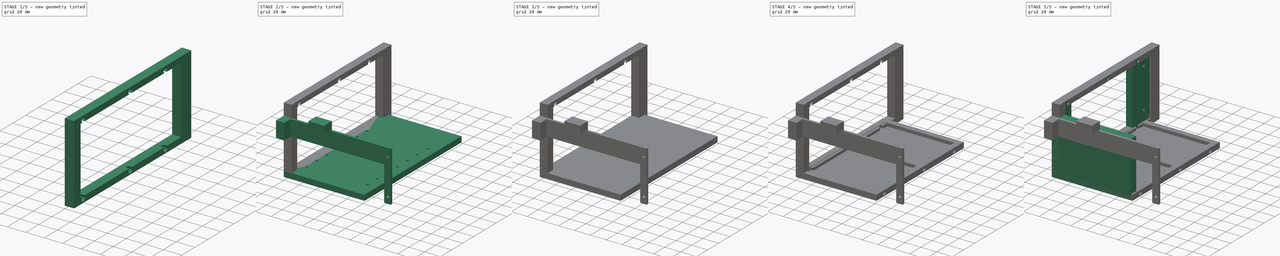
[diagram: build sequence overview — one tinted view per stage of 5, left to right]
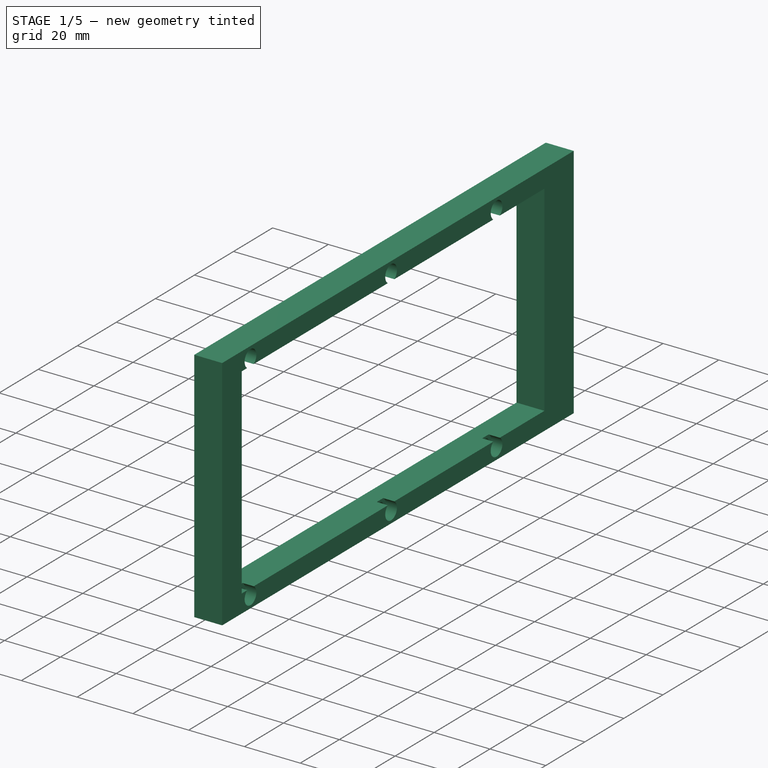
[diagram: stage 1 of 5 — iso view after this stage's code; geometry added in this stage tinted green]
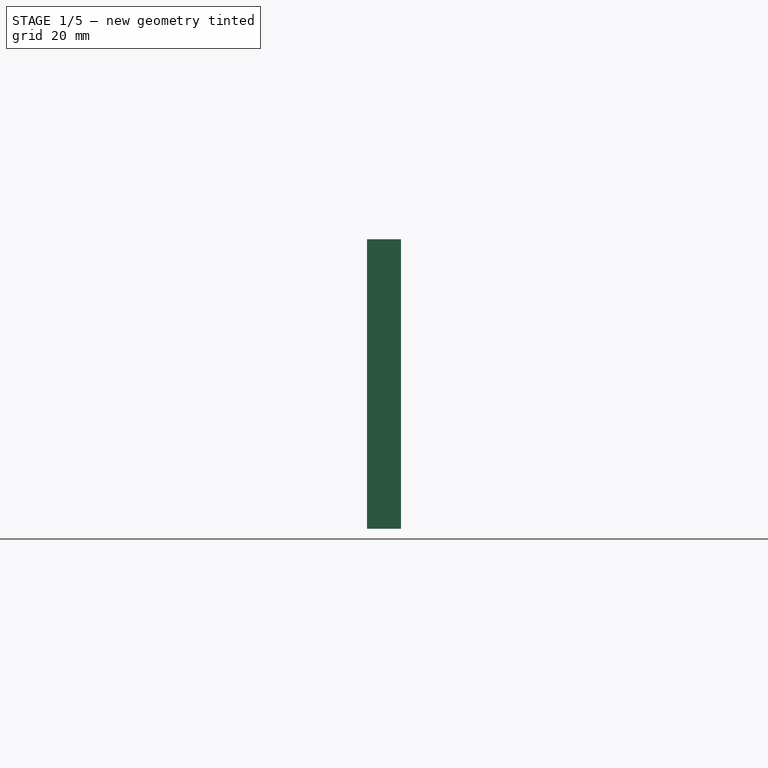
[diagram: stage 1 of 5 — front view after this stage's code; geometry added in this stage tinted green]
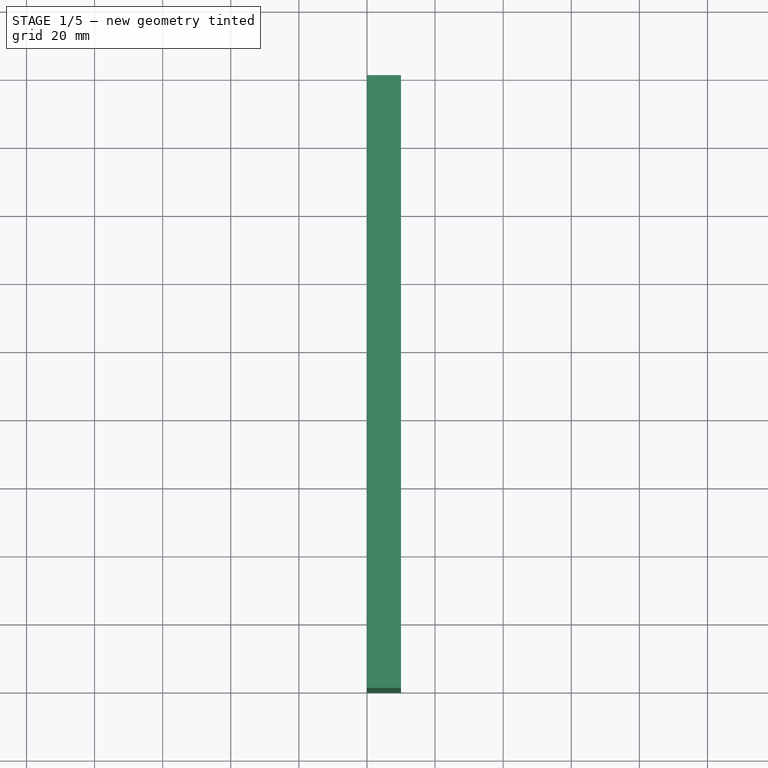
[diagram: stage 1 of 5 — top view after this stage's code; geometry added in this stage tinted green]
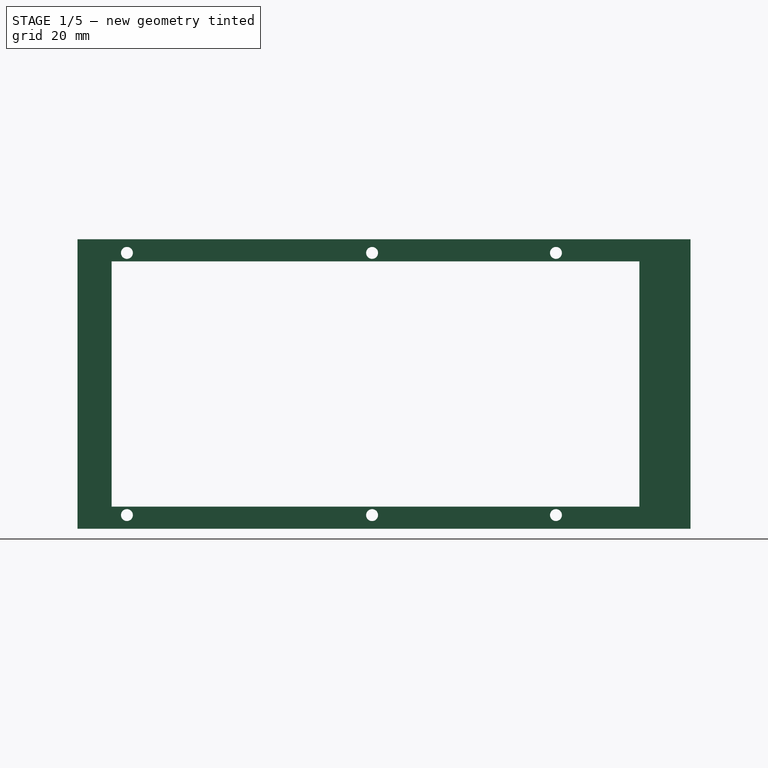
[diagram: stage 1 of 5 — right view after this stage's code; geometry added in this stage tinted green]
FCSTD DOCUMENT  (FreeCAD 1.0R39109 (Git))
Label: SSDEnclosureBottom
License: All rights reserved
LicenseURL: http://en.wikipedia.org/wiki/All_rights_reserved
objects: Sketcher::SketchObject×20, PartDesign::Pocket×13, PartDesign::Pad×7, PartDesign::Body×7, PartDesign::Hole×2
note: 113 computed .brp shape members not serialized (recipe doc carries the construction recipe); baked Part::Feature solids carry a one-line shape summary decoded from their .brp

FEATURE [Sketcher::SketchObject] Sketch014
  ArcFitTolerance = 1e-06
  AttachmentSupport = -> [YZ_Plane005]
  FullyConstrained = false
  MakeInternals = false
  MapMode = 5
  Placement = pos=(0,0,0) rot=(0.57735,0.57735,0.57735;2.0944rad)
  sketch-geometry (9):
    g0: LineSegment StartX=0 StartY=85 StartZ=0 EndX=0 EndY=0 EndZ=0
    g1: LineSegment StartX=0 StartY=0 StartZ=0 EndX=180 EndY=0 EndZ=0
    g2: LineSegment StartX=180 StartY=0 StartZ=0 EndX=180 EndY=85 EndZ=0
    g3: LineSegment StartX=180 StartY=85 StartZ=0 EndX=0 EndY=85 EndZ=0
    g4: LineSegment [constr] StartX=179.426 StartY=20 StartZ=0 EndX=-15.1568 EndY=20 EndZ=0
    g5: LineSegment StartX=10 StartY=78.5 StartZ=0 EndX=10 EndY=6.5 EndZ=0
    g6: LineSegment StartX=10 StartY=6.5 StartZ=0 EndX=165 EndY=6.5 EndZ=0
    g7: LineSegment StartX=165 StartY=6.5 StartZ=0 EndX=165 EndY=78.5 EndZ=0
    g8: LineSegment StartX=165 StartY=78.5 StartZ=0 EndX=10 EndY=78.5 EndZ=0
  constraints (25):
    c: Coincident(g0,g1)
    c: Coincident(g1,g2)
    c: Coincident(g2,g3)
    c: Coincident(g3,g0)
    c: Vertical(g0)
    c: Vertical(g2)
    c: Horizontal(g1)
    c: Horizontal(g3)
    c: Coincident(g0,g-1)
    c: DistanceX(g3,g3) = 180
    c: Horizontal(g4)
    c: Coincident(g5,g6)
    c: Coincident(g6,g7)
    c: Coincident(g7,g8)
    c: Coincident(g8,g5)
    c: Vertical(g5)
    c: Vertical(g7)
    c: Horizontal(g6)
    c: Horizontal(g8)
    c: DistanceY(g2,g2) = 85
    c: DistanceY(g0,g4) = 20
    c: DistanceY(g5,g0) = 6.5
    c: DistanceY(g0,g5) = 6.5
    c: DistanceX(g7,g2) = 15
    c: DistanceX(g0,g5) = 10
FEATURE [PartDesign::Pad] Pad005
  Direction = (1,0,0)
  Length = 10
  Length2 = 10
  Placement = pos=(0,0,0) rot=(1,1,1;2.0944rad)
  Profile = -> Sketch014
  ReferenceAxis = -> Sketch014 [N_Axis]
  Suppressed = false
  Type = 0
FEATURE [PartDesign::Body] Body008  label="frontBracket"
  AllowCompound = false
  Group = -> [Sketch018,Pad008]
  Origin = -> Origin008
  Placement = pos=(-16,0,0) rot=(0,0,1;0rad)
  Tip = -> Pad008
FEATURE [Sketcher::SketchObject] Sketch025
  ArcFitTolerance = 1e-06
  AttachmentSupport = -> [Pad005]
  FullyConstrained = false
  MakeInternals = false
  MapMode = 5
  Placement = pos=(10,0,0) rot=(0.57735,0.57735,0.57735;2.0944rad)
  sketch-geometry (12):
    g0: Circle CenterX=14.5 CenterY=81 CenterZ=0 NormalX=0 NormalY=0 NormalZ=1 AngleXU=0 Radius=1.75
    g1: LineSegment [constr] StartX=140.5 StartY=93.2705 StartZ=0 EndX=140.5 EndY=-8.10962 EndZ=0
    g2: LineSegment [constr] StartX=14.5 StartY=91.9135 StartZ=0 EndX=14.5 EndY=-5.28521 EndZ=0
    g3: LineSegment [constr] StartX=86.5 StartY=94.2958 StartZ=0 EndX=86.5 EndY=-21.9614 EndZ=0
    g4: Circle CenterX=14.5 CenterY=4 CenterZ=0 NormalX=0 NormalY=0 NormalZ=1 AngleXU=0 Radius=1.75
    g5: Circle CenterX=86.5 CenterY=4 CenterZ=0 NormalX=0 NormalY=0 NormalZ=1 AngleXU=0 Radius=1.75
    g6: Circle CenterX=140.5 CenterY=4 CenterZ=0 NormalX=0 NormalY=0 NormalZ=1 AngleXU=0 Radius=1.75
    g7: Circle CenterX=140.5 CenterY=81 CenterZ=0 NormalX=0 NormalY=0 NormalZ=1 AngleXU=0 Radius=1.75
    g8: Circle CenterX=86.5 CenterY=81 CenterZ=0 NormalX=0 NormalY=0 NormalZ=1 AngleXU=0 Radius=1.75
    g9: LineSegment [constr] StartX=-5.83039 StartY=81 StartZ=0 EndX=209.373 EndY=81 EndZ=0
    g10: LineSegment [constr] StartX=181.579 StartY=4 StartZ=0 EndX=-27.2713 EndY=4 EndZ=0
    g11: LineSegment [constr] StartX=-19.304 StartY=85 StartZ=0 EndX=213.687 EndY=85 EndZ=0
  constraints (30):
    c: Diameter(g0) = 3.5
    c: Vertical(g1)
    c: Vertical(g2)
    c: Vertical(g3)
    c: PointOnObject(g0,g2)
    c: PointOnObject(g4,g2)
    c: PointOnObject(g5,g3)
    c: PointOnObject(g6,g1)
    c: PointOnObject(g7,g1)
    c: PointOnObject(g8,g3)
    c: Equal(g5,g0)
    c: Equal(g8,g7)
    c: Equal(g7,g0)
    c: Equal(g4,g6)
    c: Equal(g6,g0)
    c: Horizontal(g9)
    c: Horizontal(g10)
    c: PointOnObject(g4,g10)
    c: PointOnObject(g5,g10)
    c: PointOnObject(g6,g10)
    c: PointOnObject(g0,g9)
    c: PointOnObject(g8,g9)
    c: PointOnObject(g7,g9)
    c: DistanceX(g-1,g2) = 14.5
    c: DistanceY(g-1,g10) = 4
    c: Horizontal(g11)
    c: DistanceY(g-1,g11) = 85
    c: DistanceY(g9,g11) = 4
    c: DistanceX(g-1,g1) = 140.5
    c: DistanceX(g-1,g3) = 86.5
FEATURE [PartDesign::Pocket] Pocket013
  BaseFeature = -> Pad005
  Direction = (-1,0,0)
  Length = 5
  Length2 = 5
  Placement = pos=(0,0,0) rot=(1,1,1;2.0944rad)
  Profile = -> Sketch025
  ReferenceAxis = -> Sketch025 [N_Axis]
  Suppressed = false
  Type = 1
FEATURE [PartDesign::Hole] Hole
  BaseFeature = -> Pocket013
  CustomThreadClearance = 0
  Depth = 4
  DepthType = 0
  Diameter = 6
  DrillForDepth = false
  DrillPoint = 0
  DrillPointAngle = 118
  HoleCutCountersinkAngle = 90
  HoleCutCustomValues = false
  HoleCutDepth = 0
  HoleCutDiameter = 6.1
  HoleCutType = 0
  ModelThread = false
  Placement = pos=(0,0,0) rot=(1,1,1;2.0944rad)
  Profile = -> Pocket013 [Edge30,Edge25,Edge23,Edge32,Edge31,Edge24]
  Suppressed = false
  Tapered = false
  TaperedAngle = 90
  ThreadClass = 0
  ThreadDepth = 4
  ThreadDepthType = 0
  ThreadDirection = 0
  ThreadFit = 0
  ThreadSize = 0
  ThreadType = 0
  Threaded = false
  UseCustomThreadClearance = false
FEATURE [PartDesign::Body] Body011  label="HoleTemplate"
  AllowCompound = false
  Group = -> [Sketch048,Pad012,Sketch049,Pocket032]
  Origin = -> Origin011
  Tip = -> Pocket032
FEATURE [Sketcher::SketchObject] Sketch050
  ArcFitTolerance = 1e-06
  AttachmentSupport = -> [Hole]
  FullyConstrained = false
  MakeInternals = false
  MapMode = 5
  Placement = pos=(3.96e-14,180,0) rot=(0.57735,0.57735,0.57735;4.18879rad)
  sketch-geometry (5):
    g0: LineSegment [constr] StartX=94.955 StartY=4 StartZ=0 EndX=-14.7005 EndY=4 EndZ=0
    g1: LineSegment [constr] StartX=26 StartY=26.4106 StartZ=0 EndX=26 EndY=-25.7556 EndZ=0
    g2: LineSegment [constr] StartX=71 StartY=38.7601 StartZ=0 EndX=71 EndY=-23.5199 EndZ=0
    g3: Circle CenterX=71 CenterY=4 CenterZ=0 NormalX=0 NormalY=0 NormalZ=1 AngleXU=0 Radius=2
    g4: Circle CenterX=26 CenterY=4 CenterZ=0 NormalX=0 NormalY=0 NormalZ=1 AngleXU=0 Radius=2
  constraints (12):
    c: Horizontal(g0)
    c: DistanceY(g-1,g0) = 4
    c: Vertical(g1)
    c: Vertical(g2)
    c: DistanceX(g-1,g1) = 26
    c: DistanceX(g1,g2) = 45
    c: PointOnObject(g3,g0)
    c: PointOnObject(g4,g0)
    c: Diameter(g4) = 4
    c: Equal(g3,g4)
    c: PointOnObject(g4,g1)
    c: PointOnObject(g3,g2)
FEATURE [PartDesign::Pocket] Pocket033
  BaseFeature = -> Hole
  Direction = (0,-1,0)
  Length = 5
  Length2 = 5
  Placement = pos=(0,0,0) rot=(1,1,1;2.0944rad)
  Profile = -> Sketch050
  ReferenceAxis = -> Sketch050 [N_Axis]
  Suppressed = false
  Type = 0
FEATURE [PartDesign::Body] Body005  label="Back"
  AllowCompound = false
  Group = -> [Sketch014,Pad005,Sketch025,Pocket013,Hole,Sketch050,Pocket033]
  Origin = -> Origin005
  Placement = pos=(102,0,0) rot=(0,0,1;0rad)
  Tip = -> Pocket033
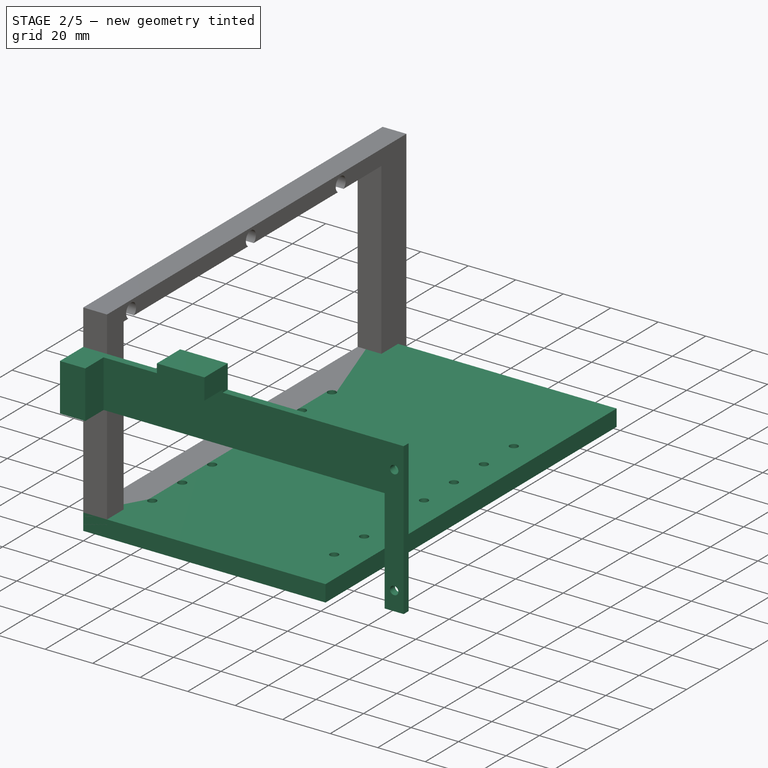
[diagram: stage 2 of 5 — iso view after this stage's code; geometry added in this stage tinted green]
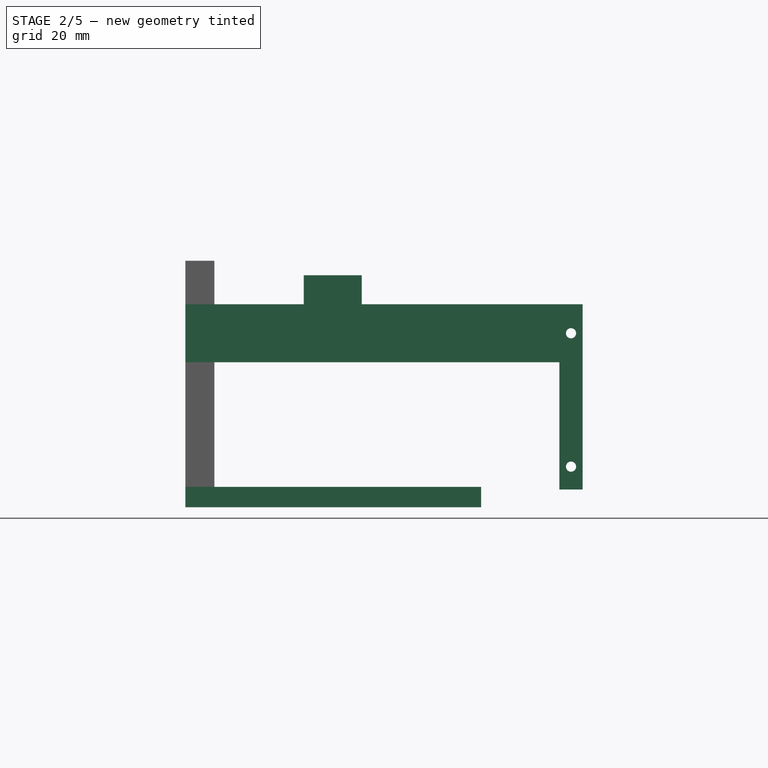
[diagram: stage 2 of 5 — front view after this stage's code; geometry added in this stage tinted green]
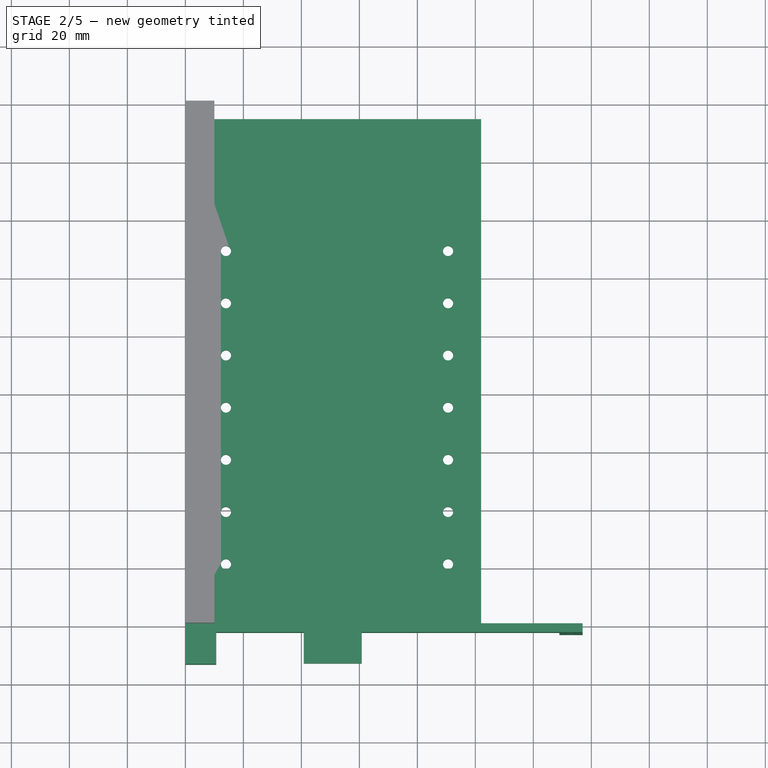
[diagram: stage 2 of 5 — top view after this stage's code; geometry added in this stage tinted green]
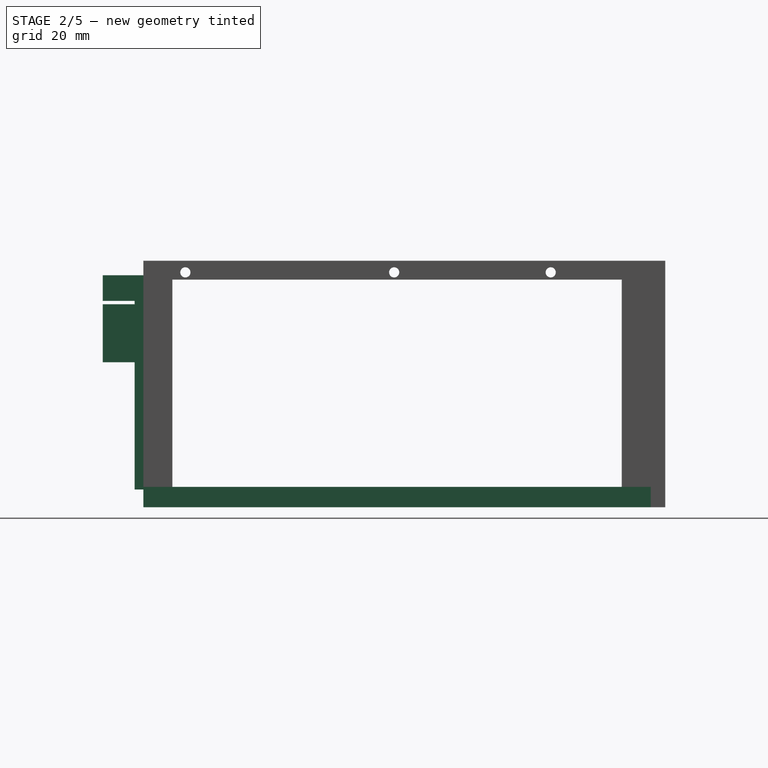
[diagram: stage 2 of 5 — right view after this stage's code; geometry added in this stage tinted green]
FEATURE [PartDesign::Body] Body009  label="TopV2_2"
  AllowCompound = false
  Group = -> [Sketch036,Pad010,Sketch037,Pocket022,Sketch038,Pocket023,Sketch039,Pocket024,Sketch040,Pocket025,Sketch041,Pocket026]
  Origin = -> Origin009
  Placement = pos=(-1.5e-14,0,77) rot=(0,0,1;0rad)
  Tip = -> Pocket026
FEATURE [Sketcher::SketchObject] Sketch042
  ArcFitTolerance = 1e-06
  AttachmentSupport = -> [XY_Plane010]
  FullyConstrained = true
  MakeInternals = false
  MapMode = 5
  sketch-geometry (4):
    g0: LineSegment StartX=0 StartY=175 StartZ=0 EndX=0 EndY=0 EndZ=0
    g1: LineSegment StartX=0 StartY=0 StartZ=0 EndX=102 EndY=0 EndZ=0
    g2: LineSegment StartX=102 StartY=0 StartZ=0 EndX=102 EndY=175 EndZ=0
    g3: LineSegment StartX=102 StartY=175 StartZ=0 EndX=0 EndY=175 EndZ=0
  constraints (11):
    c: Coincident(g0,g1)
    c: Coincident(g1,g2)
    c: Coincident(g2,g3)
    c: Coincident(g3,g0)
    c: Vertical(g0)
    c: Vertical(g2)
    c: Horizontal(g1)
    c: Horizontal(g3)
    c: Coincident(g0,g-1)
    c: DistanceX(g1,g1) = 102
    c: DistanceY(g2,g2) = 175
FEATURE [PartDesign::Pad] Pad011
  Direction = (0,0,1)
  Length = 7
  Length2 = 10
  Profile = -> Sketch042
  ReferenceAxis = -> Sketch042 [N_Axis]
  Suppressed = false
  Type = 0
FEATURE [Sketcher::SketchObject] Sketch043
  ArcFitTolerance = 1e-06
  AttachmentSupport = -> [Pad011]
  FullyConstrained = false
  MakeInternals = false
  MapMode = 5
  Placement = pos=(0,0,0) rot=(1,0,0;3.14159rad)
  sketch-geometry (25):
    g0: LineSegment [constr] StartX=152.675 StartY=-18 StartZ=0 EndX=-48.4812 EndY=-18 EndZ=0
    g1: LineSegment [constr] StartX=-37.5837 StartY=-21.5 StartZ=0 EndX=157.413 EndY=-21.5 EndZ=0
    g2: LineSegment [constr] StartX=14 StartY=-197.958 StartZ=0 EndX=14 EndY=32.466 EndZ=0
    g3: LineSegment [constr] StartX=90.6 StartY=-199.892 StartZ=0 EndX=90.6 EndY=56.2337 EndZ=0
    g4: LineSegment [constr] StartX=132.772 StartY=-39.5 StartZ=0 EndX=-44.6916 EndY=-39.5 EndZ=0
    g5: LineSegment [constr] StartX=124.478 StartY=-57.5 StartZ=0 EndX=-58.9085 EndY=-57.5 EndZ=0
    g6: LineSegment [constr] StartX=117.606 StartY=-75.5 StartZ=0 EndX=-49.1953 EndY=-75.5 EndZ=0
    g7: LineSegment [constr] StartX=116.42 StartY=-93.5 StartZ=0 EndX=-51.0926 EndY=-93.5 EndZ=0
    g8: LineSegment [constr] StartX=124.237 StartY=-111.5 StartZ=0 EndX=-58.439 EndY=-111.5 EndZ=0
    g9: LineSegment [constr] StartX=114.997 StartY=-129.5 StartZ=0 EndX=-42.5643 EndY=-129.5 EndZ=0
    g10: Circle CenterX=90.6 CenterY=-129.5 CenterZ=0 NormalX=0 NormalY=0 NormalZ=1 AngleXU=0 Radius=1.75
    g11: Circle CenterX=14 CenterY=-129.5 CenterZ=0 NormalX=0 NormalY=0 NormalZ=1 AngleXU=0 Radius=1.75
    g12: Circle CenterX=90.6 CenterY=-111.5 CenterZ=0 NormalX=0 NormalY=0 NormalZ=1 AngleXU=0 Radius=1.75
    g13: Circle CenterX=14 CenterY=-111.5 CenterZ=0 NormalX=0 NormalY=0 NormalZ=1 AngleXU=0 Radius=1.75
    g14: Circle CenterX=90.6 CenterY=-93.5 CenterZ=0 NormalX=0 NormalY=0 NormalZ=1 AngleXU=0 Radius=1.75
    g15: Circle CenterX=14 CenterY=-93.5 CenterZ=0 NormalX=0 NormalY=0 NormalZ=1 AngleXU=0 Radius=1.75
    g16: Circle CenterX=14 CenterY=-75.5 CenterZ=0 NormalX=0 NormalY=0 NormalZ=1 AngleXU=0 Radius=1.75
    g17: Circle CenterX=90.6 CenterY=-75.5 CenterZ=0 NormalX=0 NormalY=0 NormalZ=1 AngleXU=0 Radius=1.75
    g18: Circle CenterX=90.6 CenterY=-57.5 CenterZ=0 NormalX=0 NormalY=0 NormalZ=1 AngleXU=0 Radius=1.75
    g19: Circle CenterX=90.6 CenterY=-39.5 CenterZ=0 NormalX=0 NormalY=0 NormalZ=1 AngleXU=0 Radius=1.75
    g20: Circle CenterX=14 CenterY=-39.5 CenterZ=0 NormalX=0 NormalY=0 NormalZ=1 AngleXU=0 Radius=1.75
    g21: Circle CenterX=14 CenterY=-21.5 CenterZ=0 NormalX=0 NormalY=0 NormalZ=1 AngleXU=0 Radius=1.75
    g22: Circle CenterX=90.6 CenterY=-21.5 CenterZ=0 NormalX=0 NormalY=0 NormalZ=1 AngleXU=0 Radius=1.75
    g23: Circle CenterX=14 CenterY=-57.5 CenterZ=0 NormalX=0 NormalY=0 NormalZ=1 AngleXU=0 Radius=1.75
    g24: LineSegment [constr] StartX=102 StartY=-195.233 StartZ=0 EndX=102 EndY=26.966 EndZ=0
  constraints (64):
    c: Horizontal(g0)
    c: Horizontal(g1)
    c: Distance(g-1,g0) = 18
    c: DistanceY(g1,g0) = 3.5
    c: Vertical(g2)
    c: Vertical(g3)
    c: Horizontal(g4)
    c: DistanceY(g4,g1) = 18
    c: Horizontal(g5)
    c: DistanceY(g5,g4) = 18
    c: Horizontal(g6)
    c: Horizontal(g7)
    c: Horizontal(g8)
    c: DistanceY(g6,g5) = 18
    c: DistanceY(g7,g6) = 18
    c: DistanceY(g8,g7) = 18
    c: Horizontal(g9)
    c: DistanceY(g9,g8) = 18
    c: PointOnObject(g10,g3)
    c: PointOnObject(g11,g2)
    c: PointOnObject(g12,g3)
    c: PointOnObject(g13,g2)
    c: PointOnObject(g14,g3)
    c: PointOnObject(g15,g2)
    c: PointOnObject(g17,g3)
    c: PointOnObject(g18,g3)
    c: PointOnObject(g19,g3)
    c: PointOnObject(g20,g2)
    c: PointOnObject(g21,g2)
    c: PointOnObject(g22,g3)
    c: Diameter(g22) = 3.5
    c: Equal(g19,g18)
    c: Equal(g18,g20)
    c: Equal(g20,g21)
    c: Equal(g21,g22)
    c: Equal(g22,g17)
    c: Equal(g17,g16)
    c: Equal(g16,g14)
    c: Equal(g14,g12)
    c: Equal(g12,g10)
    c: Equal(g10,g11)
    c: Equal(g11,g13)
    c: Equal(g13,g15)
    c: PointOnObject(g22,g1)
    c: PointOnObject(g21,g1)
    c: PointOnObject(g20,g4)
    c: PointOnObject(g19,g4)
    c: PointOnObject(g18,g5)
    c: PointOnObject(g23,g2)
    c: Equal(g23,g22)
    c: PointOnObject(g23,g5)
    c: PointOnObject(g16,g2)
    c: PointOnObject(g16,g6)
    c: PointOnObject(g17,g6)
    c: PointOnObject(g15,g7)
    c: PointOnObject(g14,g7)
    c: PointOnObject(g12,g8)
    c: PointOnObject(g13,g8)
    c: PointOnObject(g11,g9)
    c: PointOnObject(g10,g9)
    c: Vertical(g24)
    c: DistanceX(g-1,g24) = 102
    c: DistanceX(g-1,g2) = 14
    c: DistanceX(g-1,g3) = 90.6
FEATURE [PartDesign::Pocket] Pocket027
  BaseFeature = -> Pad011
  Direction = (0,0,1)
  Length = 5
  Length2 = 5
  Profile = -> Sketch043
  ReferenceAxis = -> Sketch043 [N_Axis]
  Suppressed = false
  Type = 1
FEATURE [Sketcher::SketchObject] Sketch044
  ArcFitTolerance = 1e-06
  AttachmentSupport = -> [Pocket027]
  FullyConstrained = false
  MakeInternals = false
  MapMode = 5
  Placement = pos=(0,0,0) rot=(0.57735,-0.57735,-0.57735;2.0944rad)
  sketch-geometry (7):
    g0: LineSegment [constr] StartX=-201.898 StartY=3 StartZ=0 EndX=79.1052 EndY=3 EndZ=0
    g1: LineSegment [constr] StartX=-14.5 StartY=11.5751 StartZ=0 EndX=-14.5 EndY=-53.1522 EndZ=0
    g2: LineSegment [constr] StartX=-86.5 StartY=15.3868 StartZ=0 EndX=-86.5 EndY=-65.6634 EndZ=0
    g3: LineSegment [constr] StartX=-140.5 StartY=22.375 StartZ=0 EndX=-140.5 EndY=-54.0624 EndZ=0
    g4: Circle CenterX=-14.5 CenterY=3 CenterZ=0 NormalX=0 NormalY=0 NormalZ=1 AngleXU=0 Radius=2.25
    g5: Circle CenterX=-86.5 CenterY=3 CenterZ=0 NormalX=0 NormalY=0 NormalZ=1 AngleXU=0 Radius=2.25
    g6: Circle CenterX=-140.5 CenterY=3 CenterZ=0 NormalX=0 NormalY=0 NormalZ=1 AngleXU=0 Radius=2.25
  constraints (17):
    c: Horizontal(g0)
    c: Vertical(g1)
    c: Vertical(g2)
    c: Vertical(g3)
    c: DistanceY(g-1,g0) = 3
    c: DistanceX(g1,g-1) = 14.5
    c: DistanceX(g2,g-1) = 86.5
    c: DistanceX(g3,g-1) = 140.5
    c: PointOnObject(g4,g1)
    c: PointOnObject(g5,g2)
    c: PointOnObject(g6,g3)
    c: Diameter(g6) = 4.5
    c: Equal(g6,g5)
    c: Equal(g5,g4)
    c: PointOnObject(g4,g0)
    c: PointOnObject(g5,g0)
    c: PointOnObject(g6,g0)
FEATURE [PartDesign::Pocket] Pocket028
  BaseFeature = -> Pocket027
  Direction = (1,0,0)
  Length = 5
  Length2 = 5
  Profile = -> Sketch044
  ReferenceAxis = -> Sketch044 [N_Axis]
  Suppressed = false
  Type = 0
FEATURE [PartDesign::Body] Body010  label="bottomV2"
  AllowCompound = false
  Group = -> [Sketch042,Pad011,Sketch043,Pocket027,Sketch044,Pocket028,Sketch045,Pocket029,Sketch046,Pocket030,Sketch047,Pocket031]
  Origin = -> Origin010
  Placement = pos=(102,0,7) rot=(0,1,0;3.14159rad)
  Tip = -> Pocket031
FEATURE [Sketcher::SketchObject] Sketch048
  ArcFitTolerance = 1e-06
  AttachmentSupport = -> [XZ_Plane011]
  FullyConstrained = false
  MakeInternals = false
  MapMode = 5
  Placement = pos=(0,0,0) rot=(1,0,0;1.5708rad)
  sketch-geometry (17):
    g0: LineSegment StartX=0 StartY=70 StartZ=0 EndX=40.8105 EndY=70 EndZ=0
    g1: LineSegment StartX=40.8105 StartY=70 StartZ=0 EndX=40.8105 EndY=80 EndZ=0
    g2: LineSegment StartX=40.8105 StartY=80 StartZ=0 EndX=60.8105 EndY=80 EndZ=0
    g3: LineSegment StartX=60.8105 StartY=80 StartZ=0 EndX=60.8105 EndY=70 EndZ=0
    g4: LineSegment StartX=60.8105 StartY=70 StartZ=0 EndX=137 EndY=70 EndZ=0
    g5: LineSegment StartX=137 StartY=70 StartZ=0 EndX=137 EndY=6.12096 EndZ=0
    g6: LineSegment StartX=137 StartY=6.12096 StartZ=0 EndX=129 EndY=6.12096 EndZ=0
    g7: LineSegment StartX=129 StartY=6.12096 StartZ=0 EndX=129 EndY=50 EndZ=0
    g8: LineSegment StartX=129 StartY=50 StartZ=0 EndX=0 EndY=50 EndZ=0
    g9: LineSegment StartX=0 StartY=50 StartZ=0 EndX=0 EndY=70 EndZ=0
    g10: LineSegment [constr] StartX=-40.3984 StartY=80 StartZ=0 EndX=200.801 EndY=80 EndZ=0
    g11: LineSegment [constr] StartX=133 StartY=182.706 StartZ=0 EndX=133 EndY=-19.1622 EndZ=0
    g12: LineSegment [constr] StartX=33.7622 StartY=70 StartZ=0 EndX=68.1177 EndY=70 EndZ=0
    g13: LineSegment [constr] StartX=159.101 StartY=14 StartZ=0 EndX=107.686 EndY=14 EndZ=0
    g14: LineSegment [constr] StartX=108.397 StartY=60 StartZ=0 EndX=153.651 EndY=60 EndZ=0
    g15: Circle CenterX=133 CenterY=60 CenterZ=0 NormalX=0 NormalY=0 NormalZ=1 AngleXU=0 Radius=1.75
    g16: Circle CenterX=133 CenterY=14 CenterZ=0 NormalX=0 NormalY=0 NormalZ=1 AngleXU=0 Radius=1.75
  constraints (44):
    c: PointOnObject(g0,g-2)
    c: Coincident(g0,g1)
    c: Coincident(g1,g2)
    c: Horizontal(g2)
    c: Coincident(g2,g3)
    c: Vertical(g3)
    c: Coincident(g3,g4)
    c: Horizontal(g4)
    c: Coincident(g4,g5)
    c: Vertical(g5)
    c: Coincident(g5,g6)
    c: Horizontal(g6)
    c: Coincident(g6,g7)
    c: Vertical(g7)
    c: Coincident(g7,g8)
    c: Horizontal(g8)
    c: Coincident(g8,g9)
    c: Coincident(g9,g0)
    c: Vertical(g9)
    c: Horizontal(g0)
    c: Vertical(g1)
    c: DistanceX(g6,g6) = 8
    c: DistanceX(g-1,g4) = 137
    c: Horizontal(g10)
    c: DistanceY(g-1,g10) = 80
    c: PointOnObject(g1,g10)
    c: DistanceX(g2,g2) = 20
    c: Vertical(g11)
    c: DistanceX(g11,g4) = 4
    c: DistanceY(g8,g0) = 20
    c: Horizontal(g12)
    c: PointOnObject(g3,g12)
    c: PointOnObject(g0,g12)
    c: DistanceY(g1,g1) = 10
    c: Horizontal(g13)
    c: Horizontal(g14)
    c: DistanceY(g13,g14) = 46
    c: DistanceY(g14,g10) = 20
    c: PointOnObject(g15,g11)
    c: Diameter(g15) = 3.5
    c: PointOnObject(g15,g14)
    c: PointOnObject(g16,g11)
    c: PointOnObject(g16,g13)
    c: Equal(g16,g15)
FEATURE [PartDesign::Pad] Pad012
  Direction = (0,-1,2e-16)
  Length = 14
  Length2 = 10
  Placement = pos=(0,0,0) rot=(1,0,0;1.5708rad)
  Profile = -> Sketch048
  ReferenceAxis = -> Sketch048 [N_Axis]
  Suppressed = false
  Type = 0
FEATURE [Sketcher::SketchObject] Sketch049
  ArcFitTolerance = 1e-06
  AttachmentSupport = -> [Pad012]
  FullyConstrained = false
  MakeInternals = false
  MapMode = 5
  Placement = pos=(0,-14,0) rot=(1,0,0;1.5708rad)
  sketch-geometry (4):
    g0: LineSegment StartX=10.651 StartY=71.1581 StartZ=0 EndX=10.651 EndY=-2.52859 EndZ=0
    g1: LineSegment StartX=10.651 StartY=-2.52859 StartZ=0 EndX=154.47 EndY=-2.52859 EndZ=0
    g2: LineSegment StartX=154.47 StartY=-2.52859 StartZ=0 EndX=154.47 EndY=71.1581 EndZ=0
    g3: LineSegment StartX=154.47 StartY=71.1581 StartZ=0 EndX=10.651 EndY=71.1581 EndZ=0
  constraints (8):
    c: Coincident(g0,g1)
    c: Coincident(g1,g2)
    c: Coincident(g2,g3)
    c: Coincident(g3,g0)
    c: Vertical(g0)
    c: Vertical(g2)
    c: Horizontal(g1)
    c: Horizontal(g3)
FEATURE [PartDesign::Pocket] Pocket032
  BaseFeature = -> Pad012
  Direction = (0,1,-2e-16)
  Length = 11
  Length2 = 5
  Placement = pos=(0,0,0) rot=(1,0,0;1.5708rad)
  Profile = -> Sketch049
  ReferenceAxis = -> Sketch049 [N_Axis]
  Suppressed = false
  Type = 0
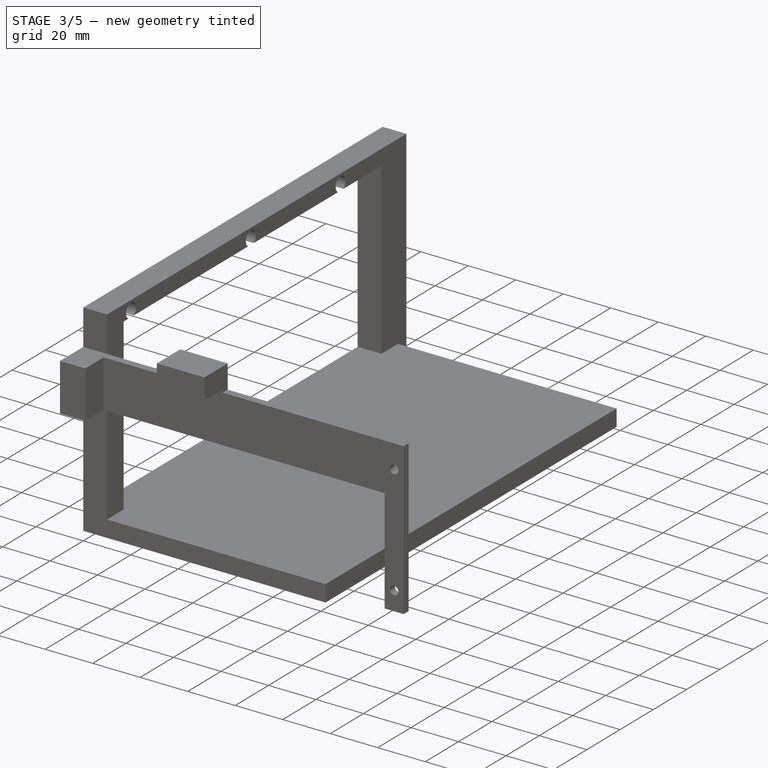
[diagram: stage 3 of 5 — iso view after this stage's code; geometry added in this stage tinted green]
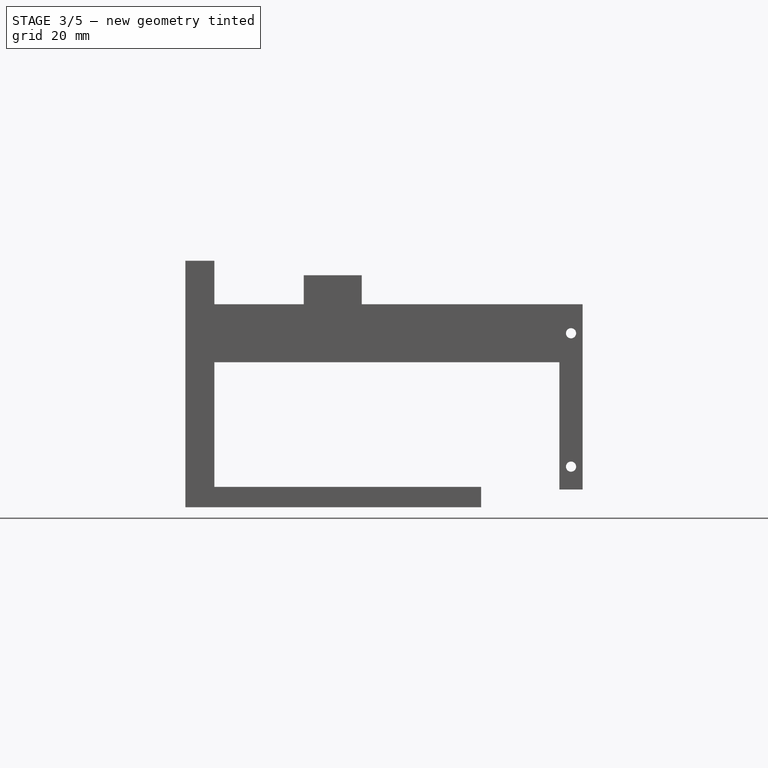
[diagram: stage 3 of 5 — front view after this stage's code; geometry added in this stage tinted green]
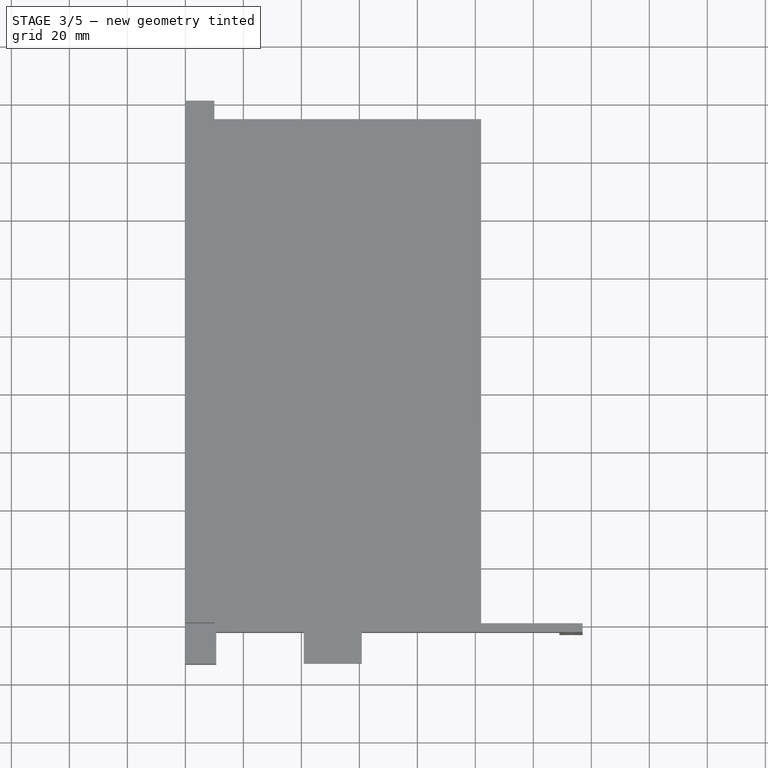
[diagram: stage 3 of 5 — top view after this stage's code; geometry added in this stage tinted green]
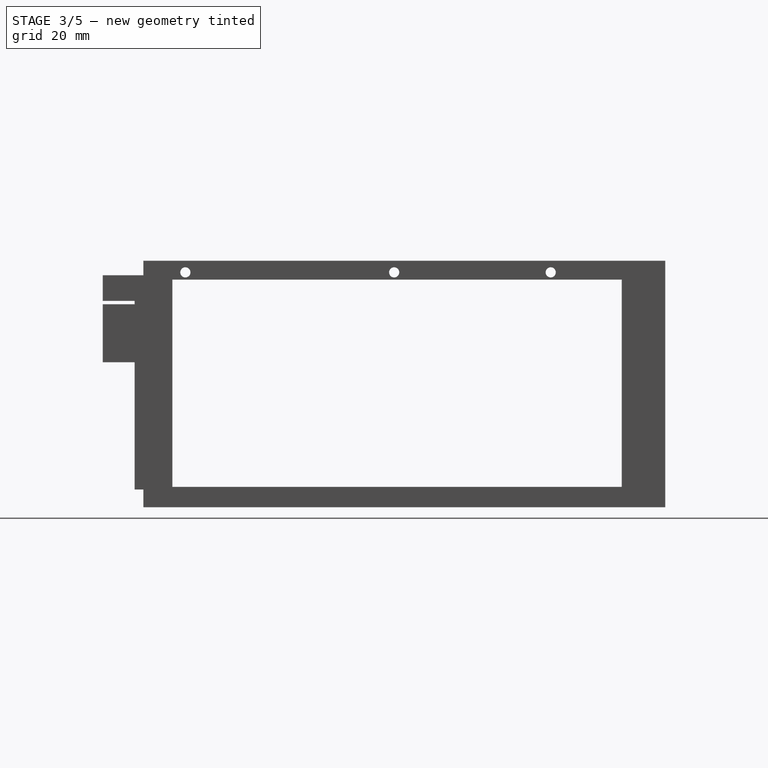
[diagram: stage 3 of 5 — right view after this stage's code; geometry added in this stage tinted green]
FEATURE [PartDesign::Body] Body  label="Front"
  AllowCompound = false
  Group = -> [Sketch,Pad,Hole001]
  Origin = -> Origin
  Placement = pos=(-8,0,0) rot=(0,0,1;0rad)
  Tip = -> Hole001
FEATURE [Sketcher::SketchObject] Sketch036
  ArcFitTolerance = 1e-06
  AttachmentSupport = -> [XY_Plane009]
  FullyConstrained = true
  MakeInternals = false
  MapMode = 5
  sketch-geometry (4):
    g0: LineSegment StartX=0 StartY=175 StartZ=0 EndX=0 EndY=0 EndZ=0
    g1: LineSegment StartX=0 StartY=0 StartZ=0 EndX=102 EndY=0 EndZ=0
    g2: LineSegment StartX=102 StartY=0 StartZ=0 EndX=102 EndY=175 EndZ=0
    g3: LineSegment StartX=102 StartY=175 StartZ=0 EndX=0 EndY=175 EndZ=0
  constraints (11):
    c: Coincident(g0,g1)
    c: Coincident(g1,g2)
    c: Coincident(g2,g3)
    c: Coincident(g3,g0)
    c: Vertical(g0)
    c: Vertical(g2)
    c: Horizontal(g1)
    c: Horizontal(g3)
    c: Coincident(g0,g-1)
    c: DistanceX(g1,g1) = 102
    c: DistanceY(g2,g2) = 175
FEATURE [PartDesign::Pad] Pad010
  Direction = (0,0,1)
  Length = 7
  Length2 = 10
  Profile = -> Sketch036
  ReferenceAxis = -> Sketch036 [N_Axis]
  Suppressed = false
  Type = 0
FEATURE [Sketcher::SketchObject] Sketch045
  ArcFitTolerance = 1e-06
  AttachmentSupport = -> [Pocket028]
  FullyConstrained = false
  MakeInternals = false
  MapMode = 5
  Placement = pos=(102,0,0) rot=(0.57735,0.57735,0.57735;2.0944rad)
  sketch-geometry (7):
    g0: LineSegment [constr] StartX=-8.97014 StartY=3 StartZ=0 EndX=230.99 EndY=3 EndZ=0
    g1: LineSegment [constr] StartX=14.5 StartY=33.9154 StartZ=0 EndX=14.5 EndY=-9.0452 EndZ=0
    g2: LineSegment [constr] StartX=86.5 StartY=33.3445 StartZ=0 EndX=86.5 EndY=-13.6838 EndZ=0
    g3: LineSegment [constr] StartX=140.5 StartY=37.4836 StartZ=0 EndX=140.5 EndY=-14.2547 EndZ=0
    g4: Circle CenterX=14.5 CenterY=3 CenterZ=0 NormalX=0 NormalY=0 NormalZ=1 AngleXU=0 Radius=2.25
    g5: Circle CenterX=86.5 CenterY=3 CenterZ=0 NormalX=0 NormalY=0 NormalZ=1 AngleXU=0 Radius=2.25
    g6: Circle CenterX=140.5 CenterY=3 CenterZ=0 NormalX=0 NormalY=0 NormalZ=1 AngleXU=0 Radius=2.25
  constraints (17):
    c: Horizontal(g0)
    c: DistanceY(g-1,g0) = 3
    c: Vertical(g1)
    c: Vertical(g2)
    c: Vertical(g3)
    c: DistanceX(g-1,g1) = 14.5
    c: DistanceX(g-1,g2) = 86.5
    c: DistanceX(g-1,g3) = 140.5
    c: PointOnObject(g4,g1)
    c: PointOnObject(g5,g2)
    c: PointOnObject(g6,g3)
    c: Diameter(g4) = 4.5
    c: Equal(g4,g5)
    c: Equal(g5,g6)
    c: PointOnObject(g4,g0)
    c: PointOnObject(g5,g0)
    c: PointOnObject(g6,g0)
FEATURE [PartDesign::Pocket] Pocket029
  BaseFeature = -> Pocket028
  Direction = (-1,0,0)
  Length = 5
  Length2 = 5
  Profile = -> Sketch045
  ReferenceAxis = -> Sketch045 [N_Axis]
  Suppressed = false
  Type = 0
FEATURE [Sketcher::SketchObject] Sketch046
  ArcFitTolerance = 1e-06
  AttachmentSupport = -> [Pocket029]
  FullyConstrained = false
  MakeInternals = false
  MapMode = 5
  Placement = pos=(0,0,7) rot=(0,0,1;0rad)
  sketch-geometry (18):
    g0: LineSegment [constr] StartX=-9.39917 StartY=14.5 StartZ=0 EndX=168.158 EndY=14.5 EndZ=0
    g1: LineSegment [constr] StartX=-16.2703 StartY=86.5 StartZ=0 EndX=175.73 EndY=86.5 EndZ=0
    g2: LineSegment [constr] StartX=-17.4549 StartY=140.5 StartZ=0 EndX=157.953 EndY=140.5 EndZ=0
    g3: LineSegment [constr] StartX=-16.04 StartY=89.5 StartZ=0 EndX=112.923 EndY=89.5 EndZ=0
    g4: LineSegment [constr] StartX=112.765 StartY=82.5 StartZ=0 EndX=-16.8341 EndY=82.5 EndZ=0
    g5: LineSegment [constr] StartX=7 StartY=169.485 StartZ=0 EndX=7 EndY=-7.2676 EndZ=0
    g6: LineSegment [constr] StartX=95 StartY=154.632 StartZ=0 EndX=95 EndY=-3.47224 EndZ=0
    g7: LineSegment StartX=7 StartY=150.5 StartZ=0 EndX=7 EndY=89.5 EndZ=0
    g8: LineSegment StartX=7 StartY=89.5 StartZ=0 EndX=95 EndY=89.5 EndZ=0
    g9: LineSegment StartX=95 StartY=89.5 StartZ=0 EndX=95 EndY=150.5 EndZ=0
    g10: LineSegment StartX=95 StartY=150.5 StartZ=0 EndX=7 EndY=150.5 EndZ=0
    g11: LineSegment [constr] StartX=-18.3401 StartY=150.5 StartZ=0 EndX=146.936 EndY=150.5 EndZ=0
    g12: LineSegment [constr] StartX=-41.0364 StartY=7 StartZ=0 EndX=169.244 EndY=7 EndZ=0
    g13: LineSegment StartX=7 StartY=82.5 StartZ=0 EndX=7 EndY=7 EndZ=0
    g14: LineSegment StartX=7 StartY=7 StartZ=0 EndX=95 EndY=7 EndZ=0
    g15: LineSegment StartX=95 StartY=7 StartZ=0 EndX=95 EndY=82.5 EndZ=0
    g16: LineSegment StartX=95 StartY=82.5 StartZ=0 EndX=7 EndY=82.5 EndZ=0
    g17: LineSegment [constr] StartX=102 StartY=188.988 StartZ=0 EndX=102 EndY=-32.3089 EndZ=0
  constraints (44):
    c: Horizontal(g0)
    c: Horizontal(g1)
    c: Horizontal(g2)
    c: DistanceY(g-1,g0) = 14.5
    c: DistanceY(g-1,g1) = 86.5
    c: DistanceY(g-1,g2) = 140.5
    c: Horizontal(g3)
    c: Horizontal(g4)
    c: DistanceY(g4,g1) = 4
    c: DistanceY(g1,g3) = 3
    c: Vertical(g5)
    c: DistanceX(g-1,g5) = 7
    c: Vertical(g6)
    c: Coincident(g7,g8)
    c: Coincident(g8,g9)
    c: Coincident(g9,g10)
    c: Coincident(g10,g7)
    c: Vertical(g7)
    c: Vertical(g9)
    c: Horizontal(g8)
    c: Horizontal(g10)
    c: Horizontal(g11)
    c: DistanceY(g2,g11) = 10
    c: PointOnObject(g7,g11)
    c: PointOnObject(g7,g5)
    c: PointOnObject(g8,g6)
    c: PointOnObject(g8,g3)
    c: Horizontal(g12)
    c: DistanceY(g-1,g12) = 7
    c: Coincident(g13,g14)
    c: Coincident(g14,g15)
    c: Coincident(g15,g16)
    c: Coincident(g16,g13)
    c: Vertical(g13)
    c: Vertical(g15)
    c: Horizontal(g14)
    c: Horizontal(g16)
    c: PointOnObject(g13,g4)
    c: PointOnObject(g13,g5)
    c: PointOnObject(g14,g6)
    c: PointOnObject(g14,g12)
    c: Vertical(g17)
    c: DistanceX(g-1,g17) = 102
    c: DistanceX(g6,g17) = 7
FEATURE [PartDesign::Pocket] Pocket030
  BaseFeature = -> Pocket029
  Direction = (0,0,-1)
  Length = 4
  Length2 = 5
  Profile = -> Sketch046
  ReferenceAxis = -> Sketch046 [N_Axis]
  Suppressed = false
  Type = 0
FEATURE [Sketcher::SketchObject] Sketch047
  ArcFitTolerance = 1e-06
  AttachmentSupport = -> [Pocket030]
  FullyConstrained = false
  MakeInternals = false
  MapMode = 5
  Placement = pos=(0,0,7) rot=(0,0,1;0rad)
  sketch-geometry (5):
    g0: LineSegment StartX=-43.0798 StartY=204.949 StartZ=0 EndX=-43.0798 EndY=157.5 EndZ=0
    g1: LineSegment StartX=-43.0798 StartY=157.5 StartZ=0 EndX=143.257 EndY=157.5 EndZ=0
    g2: LineSegment StartX=143.257 StartY=157.5 StartZ=0 EndX=143.257 EndY=204.949 EndZ=0
    g3: LineSegment StartX=143.257 StartY=204.949 StartZ=0 EndX=-43.0798 EndY=204.949 EndZ=0
    g4: LineSegment [constr] StartX=-53.6678 StartY=150.5 StartZ=0 EndX=190.124 EndY=150.5 EndZ=0
  constraints (11):
    c: Coincident(g0,g1)
    c: Coincident(g1,g2)
    c: Coincident(g2,g3)
    c: Coincident(g3,g0)
    c: Vertical(g0)
    c: Vertical(g2)
    c: Horizontal(g1)
    c: Horizontal(g3)
    c: Horizontal(g4)
    c: DistanceY(g-1,g4) = 150.5
    c: DistanceY(g4,g0) = 7
FEATURE [PartDesign::Pocket] Pocket031
  BaseFeature = -> Pocket030
  Direction = (0,0,-1)
  Length = 5
  Length2 = 5
  Profile = -> Sketch047
  ReferenceAxis = -> Sketch047 [N_Axis]
  Suppressed = false
  Type = 1
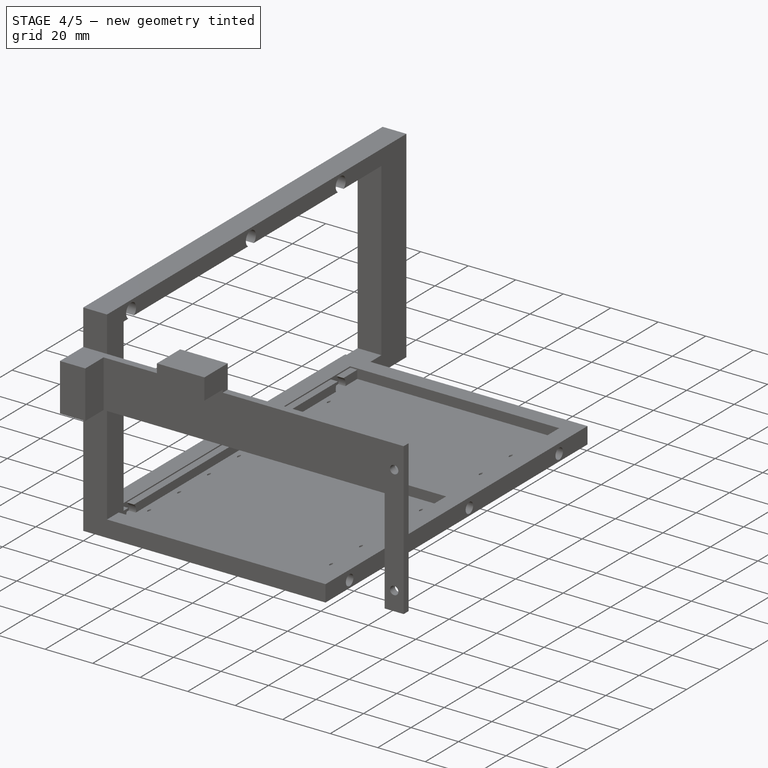
[diagram: stage 4 of 5 — iso view after this stage's code; geometry added in this stage tinted green]
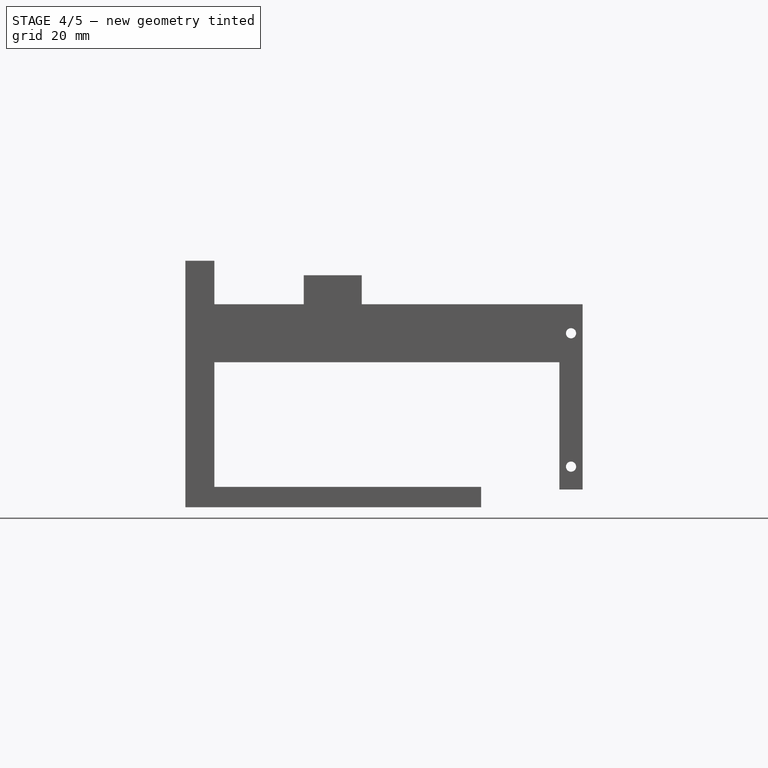
[diagram: stage 4 of 5 — front view after this stage's code; geometry added in this stage tinted green]
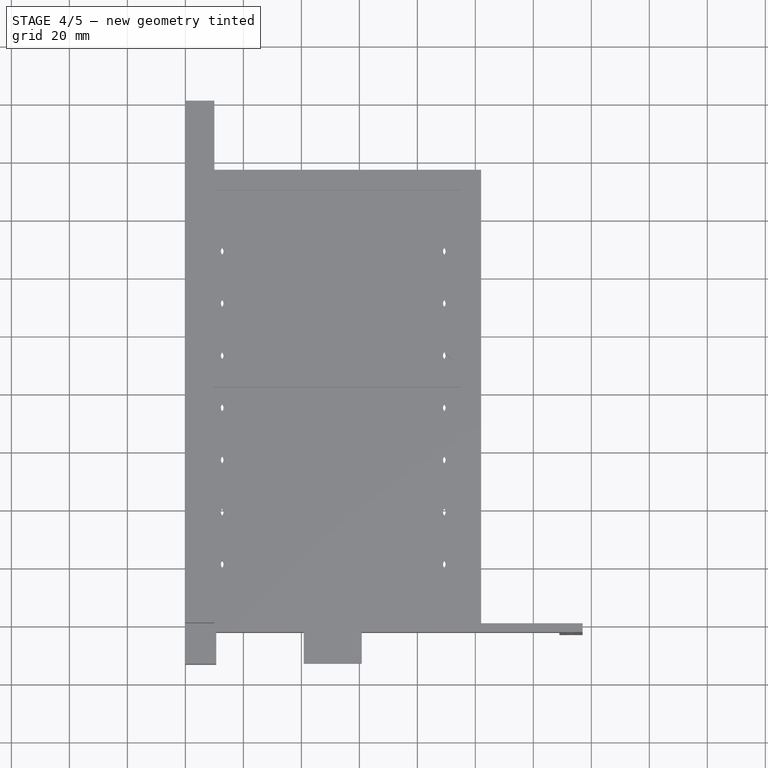
[diagram: stage 4 of 5 — top view after this stage's code; geometry added in this stage tinted green]
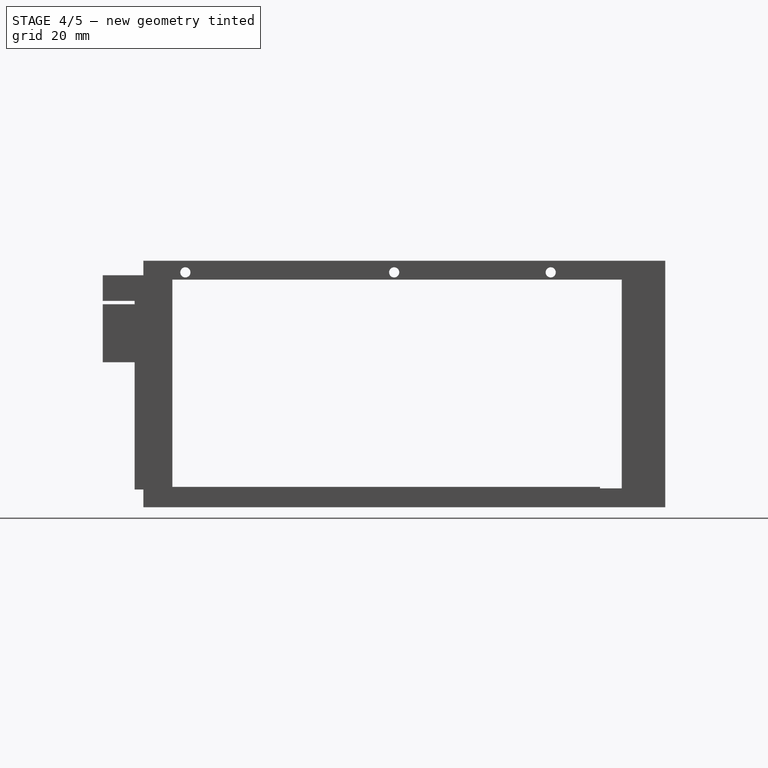
[diagram: stage 4 of 5 — right view after this stage's code; geometry added in this stage tinted green]
FEATURE [Sketcher::SketchObject] Sketch037
  ArcFitTolerance = 1e-06
  AttachmentSupport = -> [Pad010]
  FullyConstrained = false
  MakeInternals = false
  MapMode = 5
  Placement = pos=(0,0,0) rot=(1,0,0;3.14159rad)
  sketch-geometry (25):
    g0: LineSegment [constr] StartX=152.675 StartY=-18 StartZ=0 EndX=-48.4812 EndY=-18 EndZ=0
    g1: LineSegment [constr] StartX=-37.5837 StartY=-21.5 StartZ=0 EndX=157.413 EndY=-21.5 EndZ=0
    g2: LineSegment [constr] StartX=11.4 StartY=-198.545 StartZ=0 EndX=11.4 EndY=32.466 EndZ=0
    g3: LineSegment [constr] StartX=88 StartY=-199.418 StartZ=0 EndX=88 EndY=56.7075 EndZ=0
    g4: LineSegment [constr] StartX=132.772 StartY=-39.5 StartZ=0 EndX=-44.6916 EndY=-39.5 EndZ=0
    g5: LineSegment [constr] StartX=124.478 StartY=-57.5 StartZ=0 EndX=-58.9085 EndY=-57.5 EndZ=0
    g6: LineSegment [constr] StartX=117.606 StartY=-75.5 StartZ=0 EndX=-49.1953 EndY=-75.5 EndZ=0
    g7: LineSegment [constr] StartX=116.42 StartY=-93.5 StartZ=0 EndX=-51.0926 EndY=-93.5 EndZ=0
    g8: LineSegment [constr] StartX=124.237 StartY=-111.5 StartZ=0 EndX=-58.439 EndY=-111.5 EndZ=0
    g9: LineSegment [constr] StartX=114.997 StartY=-129.5 StartZ=0 EndX=-42.5643 EndY=-129.5 EndZ=0
    g10: Circle CenterX=88 CenterY=-129.5 CenterZ=0 NormalX=0 NormalY=0 NormalZ=1 AngleXU=0 Radius=1.75
    g11: Circle CenterX=11.4 CenterY=-129.5 CenterZ=0 NormalX=0 NormalY=0 NormalZ=1 AngleXU=0 Radius=1.75
    g12: Circle CenterX=88 CenterY=-111.5 CenterZ=0 NormalX=0 NormalY=0 NormalZ=1 AngleXU=0 Radius=1.75
    g13: Circle CenterX=11.4 CenterY=-111.5 CenterZ=0 NormalX=0 NormalY=0 NormalZ=1 AngleXU=0 Radius=1.75
    g14: Circle CenterX=88 CenterY=-93.5 CenterZ=0 NormalX=0 NormalY=0 NormalZ=1 AngleXU=0 Radius=1.75
    g15: Circle CenterX=11.4 CenterY=-93.5 CenterZ=0 NormalX=0 NormalY=0 NormalZ=1 AngleXU=0 Radius=1.75
    g16: Circle CenterX=11.4 CenterY=-75.5 CenterZ=0 NormalX=0 NormalY=0 NormalZ=1 AngleXU=0 Radius=1.75
    g17: Circle CenterX=88 CenterY=-75.5 CenterZ=0 NormalX=0 NormalY=0 NormalZ=1 AngleXU=0 Radius=1.75
    g18: Circle CenterX=88 CenterY=-57.5 CenterZ=0 NormalX=0 NormalY=0 NormalZ=1 AngleXU=0 Radius=1.75
    g19: Circle CenterX=88 CenterY=-39.5 CenterZ=0 NormalX=0 NormalY=0 NormalZ=1 AngleXU=0 Radius=1.75
    g20: Circle CenterX=11.4 CenterY=-39.5 CenterZ=0 NormalX=0 NormalY=0 NormalZ=1 AngleXU=0 Radius=1.75
    g21: Circle CenterX=11.4 CenterY=-21.5 CenterZ=0 NormalX=0 NormalY=0 NormalZ=1 AngleXU=0 Radius=1.75
    g22: Circle CenterX=88 CenterY=-21.5 CenterZ=0 NormalX=0 NormalY=0 NormalZ=1 AngleXU=0 Radius=1.75
    g23: Circle CenterX=11.4 CenterY=-57.5 CenterZ=0 NormalX=0 NormalY=0 NormalZ=1 AngleXU=0 Radius=1.75
    g24: LineSegment [constr] StartX=102 StartY=-195.233 StartZ=0 EndX=102 EndY=26.966 EndZ=0
  constraints (64):
    c: Horizontal(g0)
    c: Horizontal(g1)
    c: Distance(g-1,g0) = 18
    c: DistanceY(g1,g0) = 3.5
    c: Vertical(g2)
    c: Vertical(g3)
    c: Horizontal(g4)
    c: DistanceY(g4,g1) = 18
    c: Horizontal(g5)
    c: DistanceY(g5,g4) = 18
    c: Horizontal(g6)
    c: Horizontal(g7)
    c: Horizontal(g8)
    c: DistanceY(g6,g5) = 18
    c: DistanceY(g7,g6) = 18
    c: DistanceY(g8,g7) = 18
    c: Horizontal(g9)
    c: DistanceY(g9,g8) = 18
    c: PointOnObject(g10,g3)
    c: PointOnObject(g11,g2)
    c: PointOnObject(g12,g3)
    c: PointOnObject(g13,g2)
    c: PointOnObject(g14,g3)
    c: PointOnObject(g15,g2)
    c: PointOnObject(g17,g3)
    c: PointOnObject(g18,g3)
    c: PointOnObject(g19,g3)
    c: PointOnObject(g20,g2)
    c: PointOnObject(g21,g2)
    c: PointOnObject(g22,g3)
    c: Diameter(g22) = 3.5
    c: Equal(g19,g18)
    c: Equal(g18,g20)
    c: Equal(g20,g21)
    c: Equal(g21,g22)
    c: Equal(g22,g17)
    c: Equal(g17,g16)
    c: Equal(g16,g14)
    c: Equal(g14,g12)
    c: Equal(g12,g10)
    c: Equal(g10,g11)
    c: Equal(g11,g13)
    c: Equal(g13,g15)
    c: PointOnObject(g22,g1)
    c: PointOnObject(g21,g1)
    c: PointOnObject(g20,g4)
    c: PointOnObject(g19,g4)
    c: PointOnObject(g18,g5)
    c: PointOnObject(g23,g2)
    c: Equal(g23,g22)
    c: PointOnObject(g23,g5)
    c: PointOnObject(g16,g2)
    c: PointOnObject(g16,g6)
    c: PointOnObject(g17,g6)
    c: PointOnObject(g15,g7)
    c: PointOnObject(g14,g7)
    c: PointOnObject(g12,g8)
    c: PointOnObject(g13,g8)
    c: PointOnObject(g11,g9)
    c: PointOnObject(g10,g9)
    c: Vertical(g24)
    c: DistanceX(g-1,g24) = 102
    c: DistanceX(g3,g24) = 14
    c: DistanceX(g2,g24) = 90.6
FEATURE [PartDesign::Pocket] Pocket022
  BaseFeature = -> Pad010
  Direction = (0,0,1)
  Length = 5
  Length2 = 5
  Profile = -> Sketch037
  ReferenceAxis = -> Sketch037 [N_Axis]
  Suppressed = false
  Type = 1
FEATURE [Sketcher::SketchObject] Sketch038
  ArcFitTolerance = 1e-06
  AttachmentSupport = -> [Pocket022]
  FullyConstrained = false
  MakeInternals = false
  MapMode = 5
  Placement = pos=(0,0,0) rot=(0.57735,-0.57735,-0.57735;2.0944rad)
  sketch-geometry (7):
    g0: LineSegment [constr] StartX=-201.898 StartY=3 StartZ=0 EndX=79.1052 EndY=3 EndZ=0
    g1: LineSegment [constr] StartX=-14.5 StartY=11.5751 StartZ=0 EndX=-14.5 EndY=-53.1522 EndZ=0
    g2: LineSegment [constr] StartX=-86.5 StartY=15.3868 StartZ=0 EndX=-86.5 EndY=-65.6634 EndZ=0
    g3: LineSegment [constr] StartX=-140.5 StartY=22.375 StartZ=0 EndX=-140.5 EndY=-54.0624 EndZ=0
    g4: Circle CenterX=-14.5 CenterY=3 CenterZ=0 NormalX=0 NormalY=0 NormalZ=1 AngleXU=0 Radius=2.25
    g5: Circle CenterX=-86.5 CenterY=3 CenterZ=0 NormalX=0 NormalY=0 NormalZ=1 AngleXU=0 Radius=2.25
    g6: Circle CenterX=-140.5 CenterY=3 CenterZ=0 NormalX=0 NormalY=0 NormalZ=1 AngleXU=0 Radius=2.25
  constraints (17):
    c: Horizontal(g0)
    c: Vertical(g1)
    c: Vertical(g2)
    c: Vertical(g3)
    c: DistanceY(g-1,g0) = 3
    c: DistanceX(g1,g-1) = 14.5
    c: DistanceX(g2,g-1) = 86.5
    c: DistanceX(g3,g-1) = 140.5
    c: PointOnObject(g4,g1)
    c: PointOnObject(g5,g2)
    c: PointOnObject(g6,g3)
    c: Diameter(g6) = 4.5
    c: Equal(g6,g5)
    c: Equal(g5,g4)
    c: PointOnObject(g4,g0)
    c: PointOnObject(g5,g0)
    c: PointOnObject(g6,g0)
FEATURE [PartDesign::Pocket] Pocket023
  BaseFeature = -> Pocket022
  Direction = (1,0,0)
  Length = 5
  Length2 = 5
  Profile = -> Sketch038
  ReferenceAxis = -> Sketch038 [N_Axis]
  Suppressed = false
  Type = 0
FEATURE [Sketcher::SketchObject] Sketch039
  ArcFitTolerance = 1e-06
  AttachmentSupport = -> [Pocket023]
  FullyConstrained = false
  MakeInternals = false
  MapMode = 5
  Placement = pos=(102,0,0) rot=(0.57735,0.57735,0.57735;2.0944rad)
  sketch-geometry (7):
    g0: LineSegment [constr] StartX=-8.97014 StartY=3 StartZ=0 EndX=230.99 EndY=3 EndZ=0
    g1: LineSegment [constr] StartX=14.5 StartY=33.9154 StartZ=0 EndX=14.5 EndY=-9.0452 EndZ=0
    g2: LineSegment [constr] StartX=86.5 StartY=33.3445 StartZ=0 EndX=86.5 EndY=-13.6838 EndZ=0
    g3: LineSegment [constr] StartX=140.5 StartY=37.4836 StartZ=0 EndX=140.5 EndY=-14.2547 EndZ=0
    g4: Circle CenterX=14.5 CenterY=3 CenterZ=0 NormalX=0 NormalY=0 NormalZ=1 AngleXU=0 Radius=2.25
    g5: Circle CenterX=86.5 CenterY=3 CenterZ=0 NormalX=0 NormalY=0 NormalZ=1 AngleXU=0 Radius=2.25
    g6: Circle CenterX=140.5 CenterY=3 CenterZ=0 NormalX=0 NormalY=0 NormalZ=1 AngleXU=0 Radius=2.25
  constraints (17):
    c: Horizontal(g0)
    c: DistanceY(g-1,g0) = 3
    c: Vertical(g1)
    c: Vertical(g2)
    c: Vertical(g3)
    c: DistanceX(g-1,g1) = 14.5
    c: DistanceX(g-1,g2) = 86.5
    c: DistanceX(g-1,g3) = 140.5
    c: PointOnObject(g4,g1)
    c: PointOnObject(g5,g2)
    c: PointOnObject(g6,g3)
    c: Diameter(g4) = 4.5
    c: Equal(g4,g5)
    c: Equal(g5,g6)
    c: PointOnObject(g4,g0)
    c: PointOnObject(g5,g0)
    c: PointOnObject(g6,g0)
FEATURE [PartDesign::Pocket] Pocket024
  BaseFeature = -> Pocket023
  Direction = (-1,0,0)
  Length = 5
  Length2 = 5
  Profile = -> Sketch039
  ReferenceAxis = -> Sketch039 [N_Axis]
  Suppressed = false
  Type = 0
FEATURE [Sketcher::SketchObject] Sketch040
  ArcFitTolerance = 1e-06
  AttachmentSupport = -> [Pocket024]
  FullyConstrained = false
  MakeInternals = false
  MapMode = 5
  Placement = pos=(0,0,7) rot=(0,0,1;0rad)
  sketch-geometry (18):
    g0: LineSegment [constr] StartX=-9.39917 StartY=14.5 StartZ=0 EndX=168.158 EndY=14.5 EndZ=0
    g1: LineSegment [constr] StartX=-16.2703 StartY=86.5 StartZ=0 EndX=175.73 EndY=86.5 EndZ=0
    g2: LineSegment [constr] StartX=-17.4549 StartY=140.5 StartZ=0 EndX=157.953 EndY=140.5 EndZ=0
    g3: LineSegment [constr] StartX=-16.04 StartY=89.5 StartZ=0 EndX=112.923 EndY=89.5 EndZ=0
    g4: LineSegment [constr] StartX=112.765 StartY=82.5 StartZ=0 EndX=-16.8341 EndY=82.5 EndZ=0
    g5: LineSegment [constr] StartX=7 StartY=169.485 StartZ=0 EndX=7 EndY=-7.2676 EndZ=0
    g6: LineSegment [constr] StartX=95 StartY=154.632 StartZ=0 EndX=95 EndY=-3.47224 EndZ=0
    g7: LineSegment StartX=7 StartY=150.5 StartZ=0 EndX=7 EndY=89.5 EndZ=0
    g8: LineSegment StartX=7 StartY=89.5 StartZ=0 EndX=95 EndY=89.5 EndZ=0
    g9: LineSegment StartX=95 StartY=89.5 StartZ=0 EndX=95 EndY=150.5 EndZ=0
    g10: LineSegment StartX=95 StartY=150.5 StartZ=0 EndX=7 EndY=150.5 EndZ=0
    g11: LineSegment [constr] StartX=-18.3401 StartY=150.5 StartZ=0 EndX=146.936 EndY=150.5 EndZ=0
    g12: LineSegment [constr] StartX=-41.0364 StartY=7 StartZ=0 EndX=169.244 EndY=7 EndZ=0
    g13: LineSegment StartX=7 StartY=82.5 StartZ=0 EndX=7 EndY=7 EndZ=0
    g14: LineSegment StartX=7 StartY=7 StartZ=0 EndX=95 EndY=7 EndZ=0
    g15: LineSegment StartX=95 StartY=7 StartZ=0 EndX=95 EndY=82.5 EndZ=0
    g16: LineSegment StartX=95 StartY=82.5 StartZ=0 EndX=7 EndY=82.5 EndZ=0
    g17: LineSegment [constr] StartX=102 StartY=188.988 StartZ=0 EndX=102 EndY=-32.3089 EndZ=0
  constraints (44):
    c: Horizontal(g0)
    c: Horizontal(g1)
    c: Horizontal(g2)
    c: DistanceY(g-1,g0) = 14.5
    c: DistanceY(g-1,g1) = 86.5
    c: DistanceY(g-1,g2) = 140.5
    c: Horizontal(g3)
    c: Horizontal(g4)
    c: DistanceY(g4,g1) = 4
    c: DistanceY(g1,g3) = 3
    c: Vertical(g5)
    c: DistanceX(g-1,g5) = 7
    c: Vertical(g6)
    c: Coincident(g7,g8)
    c: Coincident(g8,g9)
    c: Coincident(g9,g10)
    c: Coincident(g10,g7)
    c: Vertical(g7)
    c: Vertical(g9)
    c: Horizontal(g8)
    c: Horizontal(g10)
    c: Horizontal(g11)
    c: DistanceY(g2,g11) = 10
    c: PointOnObject(g7,g11)
    c: PointOnObject(g7,g5)
    c: PointOnObject(g8,g6)
    c: PointOnObject(g8,g3)
    c: Horizontal(g12)
    c: DistanceY(g-1,g12) = 7
    c: Coincident(g13,g14)
    c: Coincident(g14,g15)
    c: Coincident(g15,g16)
    c: Coincident(g16,g13)
    c: Vertical(g13)
    c: Vertical(g15)
    c: Horizontal(g14)
    c: Horizontal(g16)
    c: PointOnObject(g13,g4)
    c: PointOnObject(g13,g5)
    c: PointOnObject(g14,g6)
    c: PointOnObject(g14,g12)
    c: Vertical(g17)
    c: DistanceX(g-1,g17) = 102
    c: DistanceX(g6,g17) = 7
FEATURE [PartDesign::Pocket] Pocket025
  BaseFeature = -> Pocket024
  Direction = (0,0,-1)
  Length = 4
  Length2 = 5
  Profile = -> Sketch040
  ReferenceAxis = -> Sketch040 [N_Axis]
  Suppressed = false
  Type = 0
FEATURE [Sketcher::SketchObject] Sketch041
  ArcFitTolerance = 1e-06
  AttachmentSupport = -> [Pocket025]
  FullyConstrained = false
  MakeInternals = false
  MapMode = 5
  Placement = pos=(0,0,7) rot=(0,0,1;0rad)
  sketch-geometry (5):
    g0: LineSegment StartX=-43.0798 StartY=204.949 StartZ=0 EndX=-43.0798 EndY=157.5 EndZ=0
    g1: LineSegment StartX=-43.0798 StartY=157.5 StartZ=0 EndX=143.257 EndY=157.5 EndZ=0
    g2: LineSegment StartX=143.257 StartY=157.5 StartZ=0 EndX=143.257 EndY=204.949 EndZ=0
    g3: LineSegment StartX=143.257 StartY=204.949 StartZ=0 EndX=-43.0798 EndY=204.949 EndZ=0
    g4: LineSegment [constr] StartX=-53.6678 StartY=150.5 StartZ=0 EndX=190.124 EndY=150.5 EndZ=0
  constraints (11):
    c: Coincident(g0,g1)
    c: Coincident(g1,g2)
    c: Coincident(g2,g3)
    c: Coincident(g3,g0)
    c: Vertical(g0)
    c: Vertical(g2)
    c: Horizontal(g1)
    c: Horizontal(g3)
    c: Horizontal(g4)
    c: DistanceY(g-1,g4) = 150.5
    c: DistanceY(g4,g0) = 7
FEATURE [PartDesign::Pocket] Pocket026
  BaseFeature = -> Pocket025
  Direction = (0,0,-1)
  Length = 5
  Length2 = 5
  Profile = -> Sketch041
  ReferenceAxis = -> Sketch041 [N_Axis]
  Suppressed = false
  Type = 1
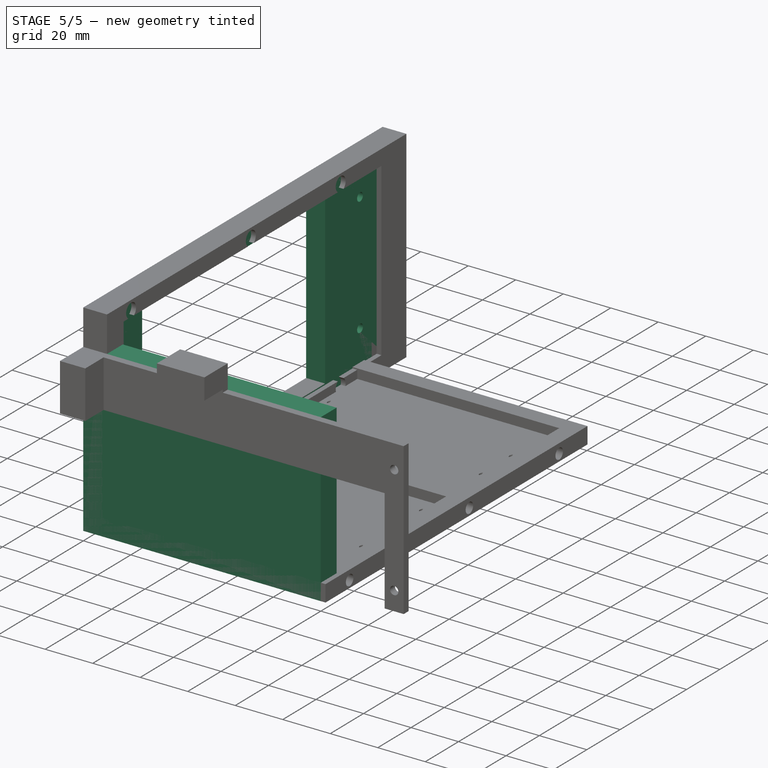
[diagram: stage 5 of 5 — iso view after this stage's code; geometry added in this stage tinted green]
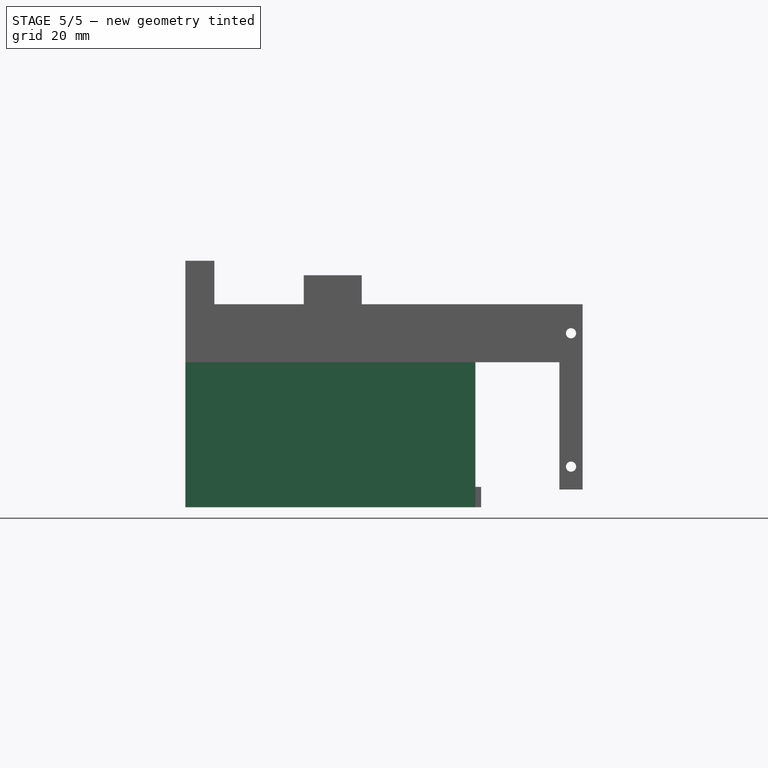
[diagram: stage 5 of 5 — front view after this stage's code; geometry added in this stage tinted green]
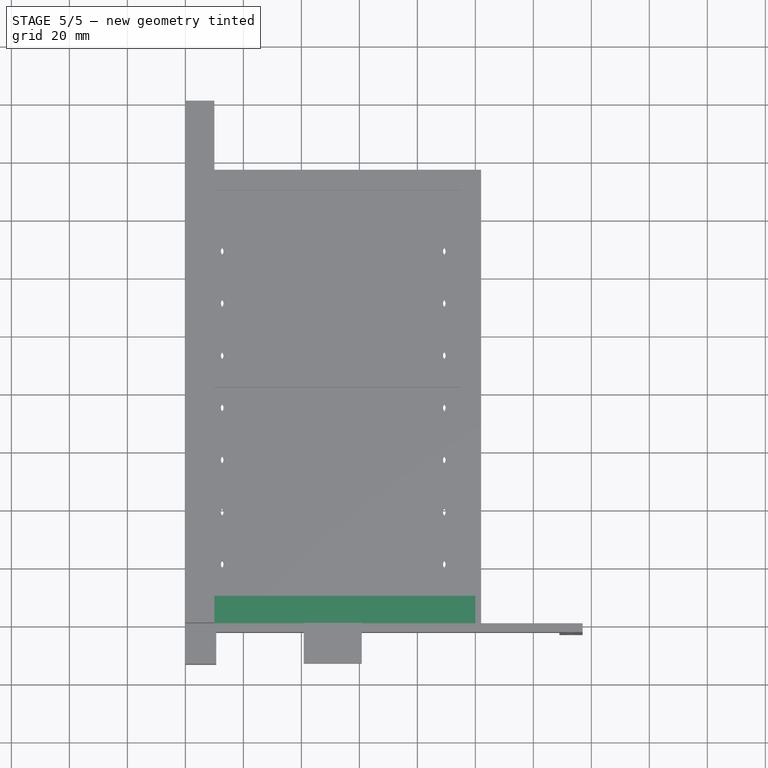
[diagram: stage 5 of 5 — top view after this stage's code; geometry added in this stage tinted green]
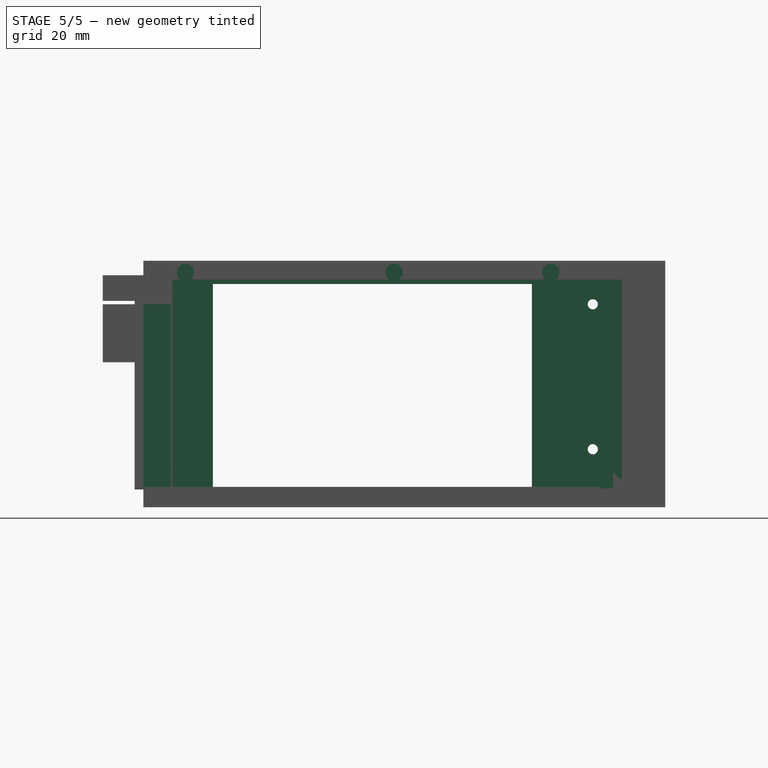
[diagram: stage 5 of 5 — right view after this stage's code; geometry added in this stage tinted green]
FEATURE [Sketcher::SketchObject] Sketch
  ArcFitTolerance = 1e-06
  AttachmentSupport = -> [YZ_Plane]
  FullyConstrained = false
  MakeInternals = false
  MapMode = 5
  Placement = pos=(0,0,0) rot=(0.57735,0.57735,0.57735;2.0944rad)
  sketch-geometry (29):
    g0: LineSegment StartX=0 StartY=85 StartZ=0 EndX=0 EndY=0 EndZ=0
    g1: LineSegment StartX=0 StartY=0 StartZ=0 EndX=175 EndY=0 EndZ=0
    g2: LineSegment StartX=175 StartY=0 StartZ=0 EndX=175 EndY=85 EndZ=0
    g3: LineSegment StartX=175 StartY=85 StartZ=0 EndX=0 EndY=85 EndZ=0
    g4: LineSegment [constr] StartX=15 StartY=121.798 StartZ=0 EndX=15 EndY=-22.2187 EndZ=0
    g5: LineSegment [constr] StartX=140 StartY=174.801 StartZ=0 EndX=140 EndY=-34.8014 EndZ=0
    g6: LineSegment [constr] StartX=-27.1634 StartY=70 StartZ=0 EndX=195.981 EndY=70 EndZ=0
    g7: LineSegment [constr] StartX=179.426 StartY=20 StartZ=0 EndX=-15.1568 EndY=20 EndZ=0
    g8: LineSegment StartX=24 StartY=78 StartZ=0 EndX=24 EndY=7 EndZ=0
    g9: LineSegment StartX=24 StartY=7 StartZ=0 EndX=134 EndY=7 EndZ=0
    g10: LineSegment StartX=134 StartY=7 StartZ=0 EndX=134 EndY=78 EndZ=0
    g11: LineSegment StartX=134 StartY=78 StartZ=0 EndX=24 EndY=78 EndZ=0
    g12: LineSegment [constr] StartX=6 StartY=91.6467 StartZ=0 EndX=6 EndY=-34.934 EndZ=0
    g13: LineSegment [constr] StartX=155 StartY=109.276 StartZ=0 EndX=155 EndY=-26.8341 EndZ=0
    g14: Circle CenterX=6 CenterY=70 CenterZ=0 NormalX=0 NormalY=0 NormalZ=1 AngleXU=0 Radius=1.75
    g15: Circle CenterX=6 CenterY=20 CenterZ=0 NormalX=0 NormalY=0 NormalZ=1 AngleXU=0 Radius=1.75
    g16: Circle CenterX=155 CenterY=20 CenterZ=0 NormalX=0 NormalY=0 NormalZ=1 AngleXU=0 Radius=1.75
    g17: Circle CenterX=155 CenterY=70 CenterZ=0 NormalX=0 NormalY=0 NormalZ=1 AngleXU=0 Radius=1.75
    g18: LineSegment [constr] StartX=14.5 StartY=92.1825 StartZ=0 EndX=14.5 EndY=-27.7001 EndZ=0
    g19: LineSegment [constr] StartX=140.5 StartY=92.9937 StartZ=0 EndX=140.5 EndY=-29.4108 EndZ=0
    g20: LineSegment [constr] StartX=-66.7166 StartY=81 StartZ=0 EndX=264.998 EndY=81 EndZ=0
    g21: LineSegment [constr] StartX=-46.7361 StartY=4 StartZ=0 EndX=269.847 EndY=4 EndZ=0
    g22: Circle CenterX=14.5 CenterY=81 CenterZ=0 NormalX=0 NormalY=0 NormalZ=1 AngleXU=0 Radius=1.75
    g23: Circle CenterX=140.5 CenterY=81 CenterZ=0 NormalX=0 NormalY=0 NormalZ=1 AngleXU=0 Radius=1.75
    g24: Circle CenterX=14.5 CenterY=4 CenterZ=0 NormalX=0 NormalY=0 NormalZ=1 AngleXU=0 Radius=1.75
    g25: Circle CenterX=140.5 CenterY=4 CenterZ=0 NormalX=0 NormalY=0 NormalZ=1 AngleXU=0 Radius=1.75
    g26: LineSegment [constr] StartX=86.5 StartY=117.223 StartZ=0 EndX=86.5 EndY=-29.236 EndZ=0
    g27: Circle CenterX=86.5 CenterY=4 CenterZ=0 NormalX=0 NormalY=0 NormalZ=1 AngleXU=0 Radius=1.75
    g28: Circle CenterX=86.5 CenterY=81 CenterZ=0 NormalX=0 NormalY=0 NormalZ=1 AngleXU=0 Radius=1.75
  constraints (75):
    c: Coincident(g0,g1)
    c: Coincident(g1,g2)
    c: Coincident(g2,g3)
    c: Coincident(g3,g0)
    c: Vertical(g0)
    c: Vertical(g2)
    c: Horizontal(g1)
    c: Horizontal(g3)
    c: Coincident(g0,g-1)
    c: DistanceX(g3,g3) = 175
    c: Vertical(g4)
    c: Vertical(g5)
    c: DistanceX(g4,g5) = 125
    c: Horizontal(g6)
    c: Horizontal(g7)
    c: Coincident(g8,g9)
    c: Coincident(g9,g10)
    c: Coincident(g10,g11)
    c: Coincident(g11,g8)
    c: Vertical(g8)
    c: Vertical(g10)
    c: Horizontal(g9)
    c: Horizontal(g11)
    c: DistanceY(g2,g2) = 85
    c: DistanceY(g0,g7) = 20
    c: DistanceY(g0,g6) = 70
    c: DistanceX(g5,g1) = 35
    c: DistanceY(g8,g0) = 7
    c: DistanceY(g0,g8) = 7
    c: Vertical(g12)
    c: DistanceX(g0,g12) = 6
    c: Vertical(g13)
    c: DistanceX(g13,g2) = 20
    c: PointOnObject(g14,g12)
    c: PointOnObject(g15,g12)
    c: PointOnObject(g16,g13)
    c: PointOnObject(g17,g13)
    c: Diameter(g14) = 3.5
    c: Equal(g14,g15)
    c: Equal(g15,g16)
    c: Equal(g16,g17)
    c: PointOnObject(g15,g7)
    c: PointOnObject(g17,g6)
    c: PointOnObject(g16,g7)
    c: PointOnObject(g14,g6)
    c: DistanceX(g0,g8) = 24
    c: DistanceX(g0,g9) = 134
    c: Vertical(g18)
    c: Vertical(g19)
    c: Horizontal(g20)
    c: Horizontal(g21)
    c: DistanceY(g20,g0) = 4
    c: DistanceY(g0,g21) = 4
    c: PointOnObject(g22,g18)
    c: PointOnObject(g23,g19)
    c: PointOnObject(g24,g18)
    c: PointOnObject(g25,g19)
    c: Diameter(g24) = 3.5
    c: Equal(g25,g24)
    c: Equal(g24,g22)
    c: Equal(g22,g23)
    c: PointOnObject(g25,g21)
    c: PointOnObject(g23,g20)
    c: PointOnObject(g22,g20)
    c: PointOnObject(g24,g21)
    c: DistanceX(g0,g18) = 14.5
    c: DistanceX(g0,g19) = 140.5
    c: Vertical(g26)
    c: DistanceX(g0,g26) = 86.5
    c: PointOnObject(g27,g26)
    c: PointOnObject(g27,g21)
    c: Equal(g24,g27)
    c: Equal(g27,g28)
    c: PointOnObject(g28,g26)
    c: PointOnObject(g28,g20)
FEATURE [PartDesign::Pad] Pad
  Direction = (1,0,0)
  Length = 8
  Length2 = 10
  Placement = pos=(0,0,0) rot=(1,1,1;2.0944rad)
  Profile = -> Sketch
  ReferenceAxis = -> Sketch [N_Axis]
  Suppressed = false
  Type = 0
FEATURE [Sketcher::SketchObject] Sketch015
  ArcFitTolerance = 1e-06
  AttachmentSupport = -> [YZ_Plane006]
  FullyConstrained = true
  MakeInternals = false
  MapMode = 5
  Placement = pos=(0,0,0) rot=(0.57735,0.57735,0.57735;2.0944rad)
  sketch-geometry (4):
    g0: LineSegment StartX=0 StartY=0 StartZ=0 EndX=9.5 EndY=0 EndZ=0
    g1: LineSegment StartX=9.5 StartY=0 StartZ=0 EndX=9.5 EndY=70 EndZ=0
    g2: LineSegment StartX=9.5 StartY=70 StartZ=0 EndX=0 EndY=70 EndZ=0
    g3: LineSegment StartX=0 StartY=70 StartZ=0 EndX=0 EndY=0 EndZ=0
  constraints (11):
    c: Coincident(g0,g1)
    c: Coincident(g1,g2)
    c: Coincident(g2,g3)
    c: Coincident(g3,g0)
    c: Horizontal(g0)
    c: Horizontal(g2)
    c: Vertical(g1)
    c: Vertical(g3)
    c: Coincident(g0,g-1)
    c: DistanceX(g2,g2) = 9.5
    c: DistanceY(g1,g1) = 70
FEATURE [PartDesign::Pad] Pad006
  Direction = (1,0,0)
  Length = 100
  Length2 = 10
  Placement = pos=(0,0,0) rot=(1,1,1;2.0944rad)
  Profile = -> Sketch015
  ReferenceAxis = -> Sketch015 [N_Axis]
  Suppressed = false
  Type = 0
FEATURE [PartDesign::Body] Body006  label="SampleSSD"
  AllowCompound = false
  Group = -> [Sketch015,Pad006]
  Origin = -> Origin006
  Placement = pos=(2,37,7) rot=(0,0,1;0rad)
  Tip = -> Pad006
FEATURE [Sketcher::SketchObject] Sketch018
  ArcFitTolerance = 1e-06
  AttachmentSupport = -> [YZ_Plane008]
  FullyConstrained = false
  MakeInternals = false
  MapMode = 5
  Placement = pos=(0,0,0) rot=(0.57735,0.57735,0.57735;2.0944rad)
  sketch-geometry (22):
    g0: LineSegment StartX=0 StartY=84 StartZ=0 EndX=0 EndY=0 EndZ=0
    g1: LineSegment StartX=0 StartY=0 StartZ=0 EndX=162 EndY=0 EndZ=0
    g2: LineSegment StartX=162 StartY=0 StartZ=0 EndX=162 EndY=84 EndZ=0
    g3: LineSegment StartX=162 StartY=84 StartZ=0 EndX=0 EndY=84 EndZ=0
    g4: LineSegment [constr] StartX=15 StartY=121.992 StartZ=0 EndX=15 EndY=-22.0247 EndZ=0
    g5: LineSegment [constr] StartX=140 StartY=174.798 StartZ=0 EndX=140 EndY=-34.7976 EndZ=0
    g6: Circle CenterX=15 CenterY=20 CenterZ=0 NormalX=0 NormalY=0 NormalZ=1 AngleXU=0 Radius=2.265
    g7: Circle CenterX=15 CenterY=70 CenterZ=0 NormalX=0 NormalY=0 NormalZ=1 AngleXU=0 Radius=2.265
    g8: Circle CenterX=140 CenterY=70 CenterZ=0 NormalX=0 NormalY=0 NormalZ=1 AngleXU=0 Radius=2.265
    g9: Circle CenterX=140 CenterY=20 CenterZ=0 NormalX=0 NormalY=0 NormalZ=1 AngleXU=0 Radius=2.265
    g10: LineSegment [constr] StartX=-27.1634 StartY=70 StartZ=0 EndX=195.981 EndY=70 EndZ=0
    g11: LineSegment [constr] StartX=179.426 StartY=20 StartZ=0 EndX=-15.1568 EndY=20 EndZ=0
    g12: LineSegment StartX=24 StartY=77 StartZ=0 EndX=24 EndY=7 EndZ=0
    g13: LineSegment StartX=24 StartY=7 StartZ=0 EndX=134 EndY=7 EndZ=0
    g14: LineSegment StartX=134 StartY=7 StartZ=0 EndX=134 EndY=77 EndZ=0
    g15: LineSegment StartX=134 StartY=77 StartZ=0 EndX=24 EndY=77 EndZ=0
    g16: LineSegment [constr] StartX=6 StartY=101.321 StartZ=0 EndX=6 EndY=-10.4396 EndZ=0
    g17: LineSegment [constr] StartX=155 StartY=126.445 StartZ=0 EndX=155 EndY=-19.8195 EndZ=0
    g18: Circle CenterX=155 CenterY=70 CenterZ=0 NormalX=0 NormalY=0 NormalZ=1 AngleXU=0 Radius=2.265
    g19: Circle CenterX=155 CenterY=20 CenterZ=0 NormalX=0 NormalY=0 NormalZ=1 AngleXU=0 Radius=2.265
    g20: Circle CenterX=6 CenterY=70 CenterZ=0 NormalX=0 NormalY=0 NormalZ=1 AngleXU=0 Radius=2.265
    g21: Circle CenterX=6 CenterY=20 CenterZ=0 NormalX=0 NormalY=0 NormalZ=1 AngleXU=0 Radius=2.265
  constraints (59):
    c: Coincident(g1,g2)
    c: Coincident(g2,g3)
    c: Coincident(g3,g0)
    c: Vertical(g0)
    c: Vertical(g2)
    c: Horizontal(g1)
    c: Horizontal(g3)
    c: Coincident(g0,g-1)
    c: Vertical(g4)
    c: Vertical(g5)
    c: DistanceX(g4,g5) = 125
    c: PointOnObject(g6,g4)
    c: Diameter(g6) = 4.53
    c: PointOnObject(g7,g4)
    c: Symmetric(g5,g5,g8)
    c: PointOnObject(g9,g5)
    c: Equal(g9,g8)
    c: Equal(g8,g7)
    c: Equal(g7,g6)
    c: Horizontal(g10)
    c: Horizontal(g11)
    c: PointOnObject(g7,g10)
    c: PointOnObject(g8,g10)
    c: PointOnObject(g9,g11)
    c: PointOnObject(g6,g11)
    c: Coincident(g12,g13)
    c: Coincident(g13,g14)
    c: Coincident(g14,g15)
    c: Coincident(g15,g12)
    c: Vertical(g12)
    c: Vertical(g14)
    c: Horizontal(g13)
    c: Horizontal(g15)
    c: DistanceY(g2,g2) = 84
    c: DistanceY(g0,g11) = 20
    c: DistanceY(g0,g10) = 70
    c: DistanceY(g12,g0) = 7
    c: DistanceY(g0,g12) = 7
    c: Vertical(g16)
    c: Coincident(g1,g0)
    c: DistanceX(g0,g13) = 134
    c: DistanceX(g3,g3) = 162
    c: Vertical(g17)
    c: DistanceX(g17,g2) = 7
    c: PointOnObject(g18,g17)
    c: PointOnObject(g19,g17)
    c: PointOnObject(g19,g11)
    c: PointOnObject(g18,g10)
    c: Equal(g9,g19)
    c: Equal(g19,g18)
    c: PointOnObject(g20,g16)
    c: PointOnObject(g21,g16)
    c: PointOnObject(g21,g11)
    c: PointOnObject(g20,g10)
    c: Equal(g21,g6)
    c: Equal(g6,g20)
    c: DistanceX(g0,g16) = 6
    c: DistanceX(g0,g4) = 15
    c: DistanceX(g0,g12) = 24
FEATURE [PartDesign::Pad] Pad008
  Direction = (1,0,0)
  Length = 8
  Length2 = 10
  Placement = pos=(0,0,0) rot=(1,1,1;2.0944rad)
  Profile = -> Sketch018
  ReferenceAxis = -> Sketch018 [N_Axis]
  Suppressed = false
  Type = 0
FEATURE [PartDesign::Hole] Hole001
  BaseFeature = -> Pad
  CustomThreadClearance = 0
  Depth = 3
  DepthType = 0
  Diameter = 6.5
  DrillForDepth = false
  DrillPoint = 0
  DrillPointAngle = 118
  HoleCutCountersinkAngle = 90
  HoleCutCustomValues = false
  HoleCutDepth = 0
  HoleCutDiameter = 6.1
  HoleCutType = 0
  ModelThread = false
  Placement = pos=(0,0,0) rot=(1,1,1;2.0944rad)
  Profile = -> Pad [Edge38,Edge35,Edge41,Edge32,Edge26,Edge29]
  Reversed = true
  Suppressed = false
  Tapered = false
  TaperedAngle = 90
  ThreadClass = 0
  ThreadDepth = 3
  ThreadDepthType = 0
  ThreadDirection = 0
  ThreadFit = 0
  ThreadSize = 0
  ThreadType = 0
  Threaded = false
  UseCustomThreadClearance = false
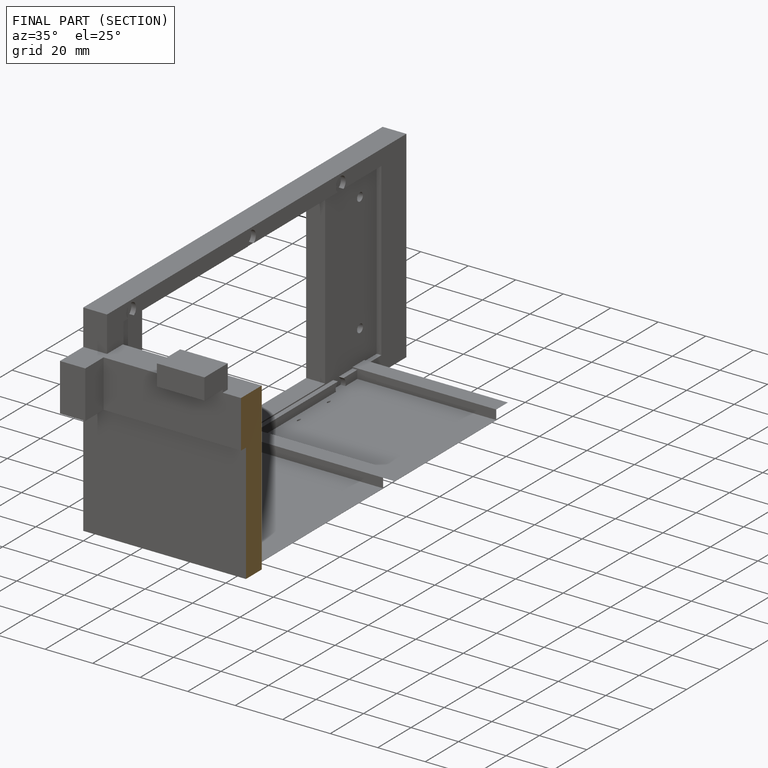
[diagram: finished part — half-section view (interior)]
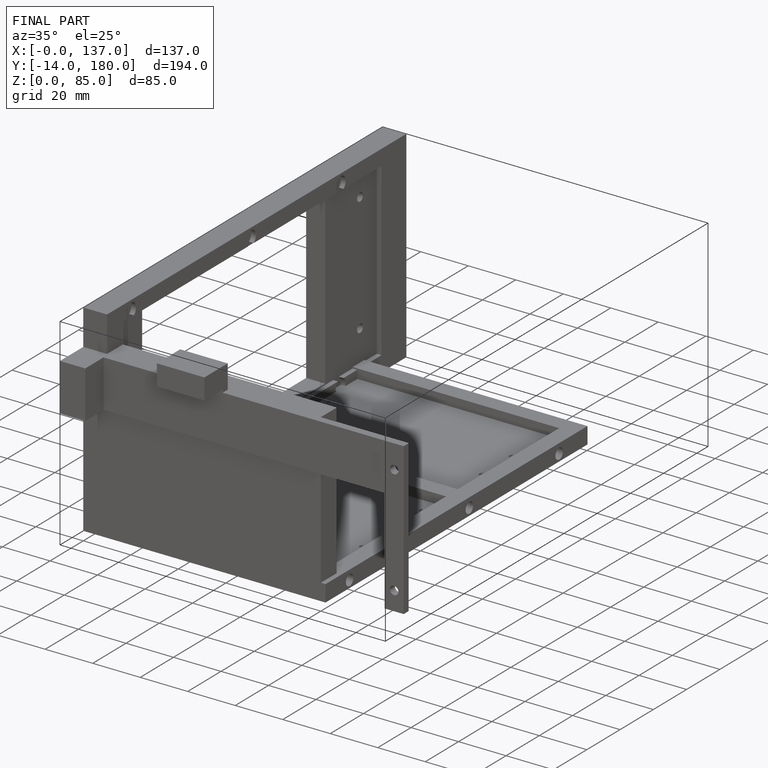
[diagram: finished part — iso view with bounding-box wireframe]
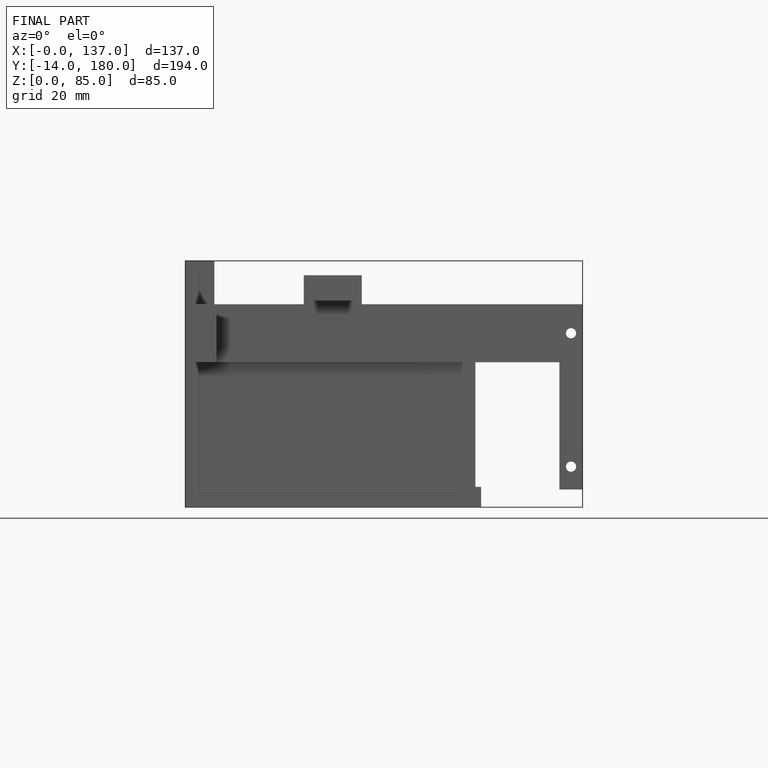
[diagram: finished part — front view with bounding-box wireframe]
